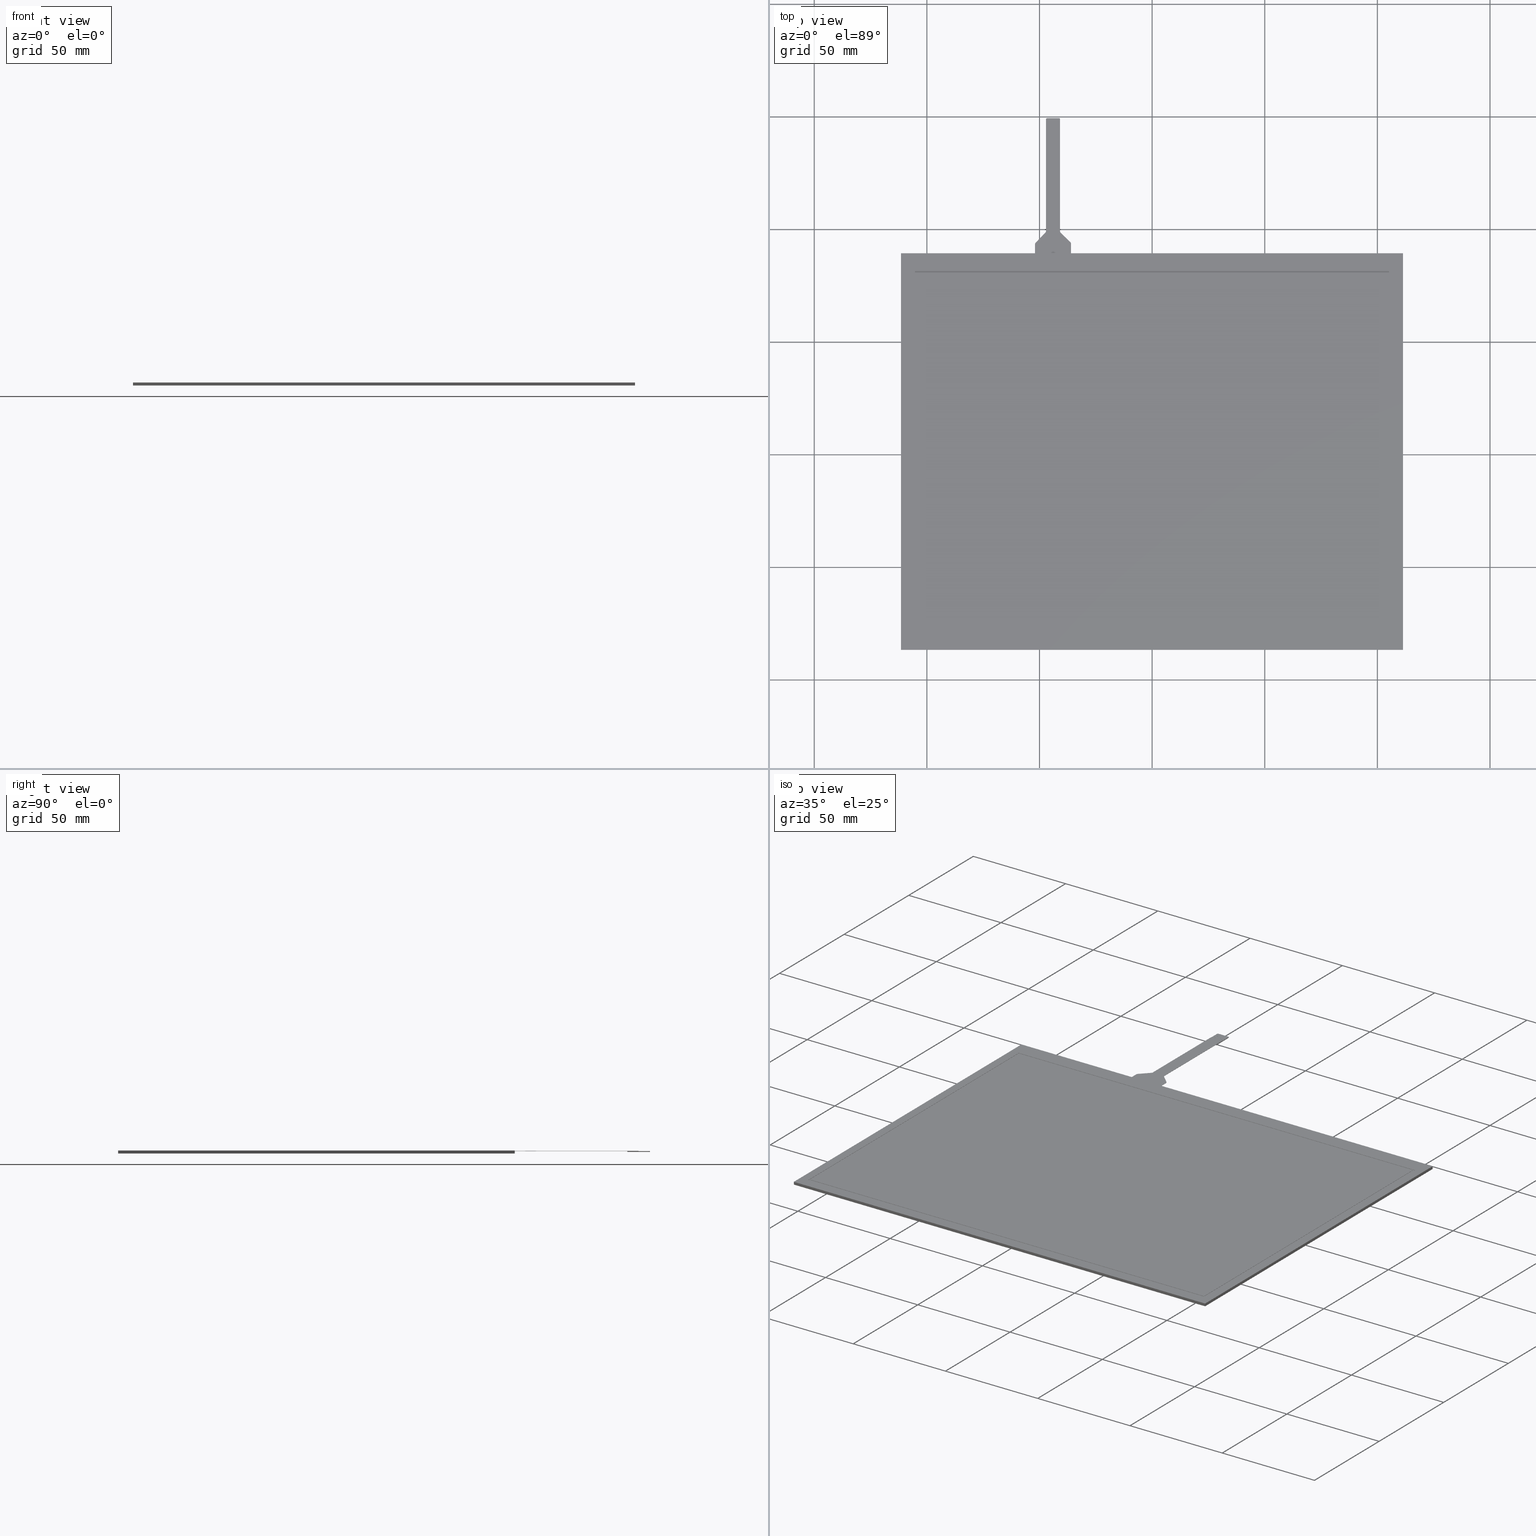
[diagram: canonical four-view strip — front | top / right | iso, engineering-drawing reading convention]
A machine part, canonical four-view strip (front | top / right | iso — engineering-drawing reading convention). The complete STEP part file that produces these views, byte-faithful:
ISO-10303-21;
HEADER;
/* Generated by software containing ST-Developer
 * from STEP Tools, Inc. (www.steptools.com) 
 */

FILE_DESCRIPTION(
/* description */ (''),
/* implementation_level */ '2;1');

FILE_NAME(
/* name */ 
'\\\\172.16.4.5\\\X2\65B06280885390E8\X0\$\\03 \X2\8A2D8A0830C730FC30BF\X0\\\
\X2\62B56297819C\X0\\\\X2\6A196E9654C1\X0\\\13. HP\X2\752856F39762\X0\\\
1. AST\\3D\X2\30C730FC30BF\X0\\\AST-105A060A\\AST-105A060A.stp',
/* time_stamp */ '2023-08-08T15:30:39+09:00',
/* author */ ('n-hirata'),
/* organization */ (''),
/* preprocessor_version */ 'ST-DEVELOPER v18.1',
/* originating_system */ 'Autodesk Inventor 2020',
/* authorisation */ '');

FILE_SCHEMA (('CONFIG_CONTROL_DESIGN'));
ENDSEC;

DATA;
#10=MECHANICAL_DESIGN_GEOMETRIC_PRESENTATION_REPRESENTATION('',(#30,#31,
#32,#33,#34,#35,#36,#37,#38,#39,#40,#41,#42,#43,#44),#1676);
#11=GEOMETRICALLY_BOUNDED_WIREFRAME_SHAPE_REPRESENTATION('',(#12),#1675);
#12=GEOMETRIC_CURVE_SET('\X2\30B930B130C330C1\X0\1',(#16,#17,#18,#19,#20,
#21,#22,#23,#24,#25,#26,#27,#28,#29));
#13=SHAPE_REPRESENTATION_RELATIONSHIP('SRR','None',#1683,#15);
#14=SHAPE_REPRESENTATION_RELATIONSHIP('SRR','None',#1683,#11);
#15=ADVANCED_BREP_SHAPE_REPRESENTATION('',(#45),#1675);
#16=POLYLINE('',(#1645,#1646));
#17=POLYLINE('',(#1647,#1648));
#18=POLYLINE('',(#1649,#1650));
#19=POLYLINE('',(#1651,#1652));
#20=POLYLINE('',(#1653,#1654));
#21=POLYLINE('',(#1655,#1656));
#22=POLYLINE('',(#1657,#1658));
#23=POLYLINE('',(#1659,#1660));
#24=POLYLINE('',(#1661,#1662));
#25=POLYLINE('',(#1663,#1664));
#26=POLYLINE('',(#1665,#1666));
#27=POLYLINE('',(#1667,#1668));
#28=POLYLINE('',(#1669,#1670));
#29=POLYLINE('',(#1671,#1672));
#30=STYLED_ITEM('',(#1692),#45);
#31=STYLED_ITEM('',(#1693),#16);
#32=STYLED_ITEM('',(#1693),#17);
#33=STYLED_ITEM('',(#1694),#18);
#34=STYLED_ITEM('',(#1694),#19);
#35=STYLED_ITEM('',(#1694),#20);
#36=STYLED_ITEM('',(#1694),#21);
#37=STYLED_ITEM('',(#1694),#22);
#38=STYLED_ITEM('',(#1694),#23);
#39=STYLED_ITEM('',(#1694),#24);
#40=STYLED_ITEM('',(#1694),#25);
#41=STYLED_ITEM('',(#1694),#26);
#42=STYLED_ITEM('',(#1694),#27);
#43=STYLED_ITEM('',(#1694),#28);
#44=STYLED_ITEM('',(#1694),#29);
#45=MANIFOLD_SOLID_BREP('\X2\30BD30EA30C330C9\X0\1',#1026);
#46=FACE_BOUND('',#189,.T.);
#47=FACE_BOUND('',#191,.T.);
#48=FACE_BOUND('',#196,.T.);
#49=PLANE('',#1049);
#50=PLANE('',#1051);
#51=PLANE('',#1057);
#52=PLANE('',#1058);
#53=PLANE('',#1064);
#54=PLANE('',#1067);
#55=PLANE('',#1070);
#56=PLANE('',#1071);
#57=PLANE('',#1072);
#58=PLANE('',#1073);
#59=PLANE('',#1074);
#60=PLANE('',#1075);
#61=PLANE('',#1076);
#62=PLANE('',#1077);
#63=PLANE('',#1078);
#64=PLANE('',#1079);
#65=PLANE('',#1080);
#66=PLANE('',#1081);
#67=PLANE('',#1082);
#68=PLANE('',#1083);
#69=PLANE('',#1084);
#70=PLANE('',#1085);
#71=PLANE('',#1086);
#72=PLANE('',#1087);
#73=PLANE('',#1088);
#74=PLANE('',#1089);
#75=PLANE('',#1090);
#76=PLANE('',#1091);
#77=PLANE('',#1092);
#78=PLANE('',#1093);
#79=PLANE('',#1094);
#80=PLANE('',#1095);
#81=PLANE('',#1096);
#82=PLANE('',#1097);
#83=PLANE('',#1098);
#84=PLANE('',#1099);
#85=PLANE('',#1100);
#86=PLANE('',#1101);
#87=PLANE('',#1102);
#88=PLANE('',#1103);
#89=PLANE('',#1104);
#90=PLANE('',#1105);
#91=PLANE('',#1106);
#92=PLANE('',#1107);
#93=PLANE('',#1108);
#94=FACE_OUTER_BOUND('',#145,.T.);
#95=FACE_OUTER_BOUND('',#146,.T.);
#96=FACE_OUTER_BOUND('',#147,.T.);
#97=FACE_OUTER_BOUND('',#148,.T.);
#98=FACE_OUTER_BOUND('',#149,.T.);
#99=FACE_OUTER_BOUND('',#150,.T.);
#100=FACE_OUTER_BOUND('',#151,.T.);
#101=FACE_OUTER_BOUND('',#152,.T.);
#102=FACE_OUTER_BOUND('',#153,.T.);
#103=FACE_OUTER_BOUND('',#154,.T.);
#104=FACE_OUTER_BOUND('',#155,.T.);
#105=FACE_OUTER_BOUND('',#156,.T.);
#106=FACE_OUTER_BOUND('',#157,.T.);
#107=FACE_OUTER_BOUND('',#158,.T.);
#108=FACE_OUTER_BOUND('',#159,.T.);
#109=FACE_OUTER_BOUND('',#160,.T.);
#110=FACE_OUTER_BOUND('',#161,.T.);
#111=FACE_OUTER_BOUND('',#162,.T.);
#112=FACE_OUTER_BOUND('',#163,.T.);
#113=FACE_OUTER_BOUND('',#164,.T.);
#114=FACE_OUTER_BOUND('',#165,.T.);
#115=FACE_OUTER_BOUND('',#166,.T.);
#116=FACE_OUTER_BOUND('',#167,.T.);
#117=FACE_OUTER_BOUND('',#168,.T.);
#118=FACE_OUTER_BOUND('',#169,.T.);
#119=FACE_OUTER_BOUND('',#170,.T.);
#120=FACE_OUTER_BOUND('',#171,.T.);
#121=FACE_OUTER_BOUND('',#172,.T.);
#122=FACE_OUTER_BOUND('',#173,.T.);
#123=FACE_OUTER_BOUND('',#174,.T.);
#124=FACE_OUTER_BOUND('',#175,.T.);
#125=FACE_OUTER_BOUND('',#176,.T.);
#126=FACE_OUTER_BOUND('',#177,.T.);
#127=FACE_OUTER_BOUND('',#178,.T.);
#128=FACE_OUTER_BOUND('',#179,.T.);
#129=FACE_OUTER_BOUND('',#180,.T.);
#130=FACE_OUTER_BOUND('',#181,.T.);
#131=FACE_OUTER_BOUND('',#182,.T.);
#132=FACE_OUTER_BOUND('',#183,.T.);
#133=FACE_OUTER_BOUND('',#184,.T.);
#134=FACE_OUTER_BOUND('',#185,.T.);
#135=FACE_OUTER_BOUND('',#186,.T.);
#136=FACE_OUTER_BOUND('',#187,.T.);
#137=FACE_OUTER_BOUND('',#188,.T.);
#138=FACE_OUTER_BOUND('',#190,.T.);
#139=FACE_OUTER_BOUND('',#192,.T.);
#140=FACE_OUTER_BOUND('',#193,.T.);
#141=FACE_OUTER_BOUND('',#194,.T.);
#142=FACE_OUTER_BOUND('',#195,.T.);
#143=FACE_OUTER_BOUND('',#197,.T.);
#144=FACE_OUTER_BOUND('',#198,.T.);
#145=EDGE_LOOP('',(#693,#694,#695,#696));
#146=EDGE_LOOP('',(#697,#698,#699,#700,#701,#702));
#147=EDGE_LOOP('',(#703,#704,#705,#706,#707,#708,#709,#710,#711,#712,#713,
#714,#715,#716,#717,#718,#719,#720,#721,#722));
#148=EDGE_LOOP('',(#723,#724,#725,#726));
#149=EDGE_LOOP('',(#727,#728,#729,#730));
#150=EDGE_LOOP('',(#731,#732,#733,#734));
#151=EDGE_LOOP('',(#735,#736,#737,#738,#739,#740,#741,#742,#743,#744,#745,
#746));
#152=EDGE_LOOP('',(#747,#748,#749,#750));
#153=EDGE_LOOP('',(#751,#752,#753,#754,#755,#756,#757,#758));
#154=EDGE_LOOP('',(#759,#760,#761,#762));
#155=EDGE_LOOP('',(#763,#764,#765,#766));
#156=EDGE_LOOP('',(#767,#768,#769,#770));
#157=EDGE_LOOP('',(#771,#772,#773,#774,#775,#776,#777,#778,#779,#780,#781,
#782));
#158=EDGE_LOOP('',(#783,#784,#785,#786));
#159=EDGE_LOOP('',(#787,#788,#789,#790));
#160=EDGE_LOOP('',(#791,#792,#793,#794));
#161=EDGE_LOOP('',(#795,#796,#797,#798));
#162=EDGE_LOOP('',(#799,#800,#801,#802));
#163=EDGE_LOOP('',(#803,#804,#805,#806));
#164=EDGE_LOOP('',(#807,#808,#809,#810));
#165=EDGE_LOOP('',(#811,#812,#813,#814));
#166=EDGE_LOOP('',(#815,#816,#817,#818));
#167=EDGE_LOOP('',(#819,#820,#821,#822,#823,#824,#825,#826,#827,#828,#829,
#830,#831,#832,#833,#834,#835,#836,#837,#838));
#168=EDGE_LOOP('',(#839,#840,#841,#842));
#169=EDGE_LOOP('',(#843,#844,#845,#846));
#170=EDGE_LOOP('',(#847,#848,#849,#850));
#171=EDGE_LOOP('',(#851,#852,#853,#854));
#172=EDGE_LOOP('',(#855,#856,#857,#858));
#173=EDGE_LOOP('',(#859,#860,#861,#862));
#174=EDGE_LOOP('',(#863,#864,#865,#866,#867));
#175=EDGE_LOOP('',(#868,#869,#870,#871,#872));
#176=EDGE_LOOP('',(#873,#874,#875,#876));
#177=EDGE_LOOP('',(#877,#878,#879,#880));
#178=EDGE_LOOP('',(#881,#882,#883,#884,#885,#886,#887,#888));
#179=EDGE_LOOP('',(#889,#890,#891,#892));
#180=EDGE_LOOP('',(#893,#894,#895,#896));
#181=EDGE_LOOP('',(#897,#898,#899,#900));
#182=EDGE_LOOP('',(#901,#902,#903,#904));
#183=EDGE_LOOP('',(#905,#906,#907,#908));
#184=EDGE_LOOP('',(#909,#910,#911,#912));
#185=EDGE_LOOP('',(#913,#914,#915,#916));
#186=EDGE_LOOP('',(#917,#918,#919,#920));
#187=EDGE_LOOP('',(#921,#922,#923,#924));
#188=EDGE_LOOP('',(#925,#926,#927,#928));
#189=EDGE_LOOP('',(#929,#930,#931,#932));
#190=EDGE_LOOP('',(#933,#934,#935,#936));
#191=EDGE_LOOP('',(#937,#938,#939,#940));
#192=EDGE_LOOP('',(#941,#942,#943,#944));
#193=EDGE_LOOP('',(#945,#946,#947,#948));
#194=EDGE_LOOP('',(#949,#950,#951,#952));
#195=EDGE_LOOP('',(#953,#954,#955,#956));
#196=EDGE_LOOP('',(#957,#958,#959,#960));
#197=EDGE_LOOP('',(#961,#962,#963,#964));
#198=EDGE_LOOP('',(#965,#966,#967,#968));
#199=LINE('',#1369,#325);
#200=LINE('',#1372,#326);
#201=LINE('',#1375,#327);
#202=LINE('',#1379,#328);
#203=LINE('',#1381,#329);
#204=LINE('',#1382,#330);
#205=LINE('',#1385,#331);
#206=LINE('',#1387,#332);
#207=LINE('',#1389,#333);
#208=LINE('',#1391,#334);
#209=LINE('',#1393,#335);
#210=LINE('',#1395,#336);
#211=LINE('',#1397,#337);
#212=LINE('',#1399,#338);
#213=LINE('',#1401,#339);
#214=LINE('',#1403,#340);
#215=LINE('',#1405,#341);
#216=LINE('',#1407,#342);
#217=LINE('',#1409,#343);
#218=LINE('',#1411,#344);
#219=LINE('',#1413,#345);
#220=LINE('',#1415,#346);
#221=LINE('',#1417,#347);
#222=LINE('',#1418,#348);
#223=LINE('',#1422,#349);
#224=LINE('',#1428,#350);
#225=LINE('',#1431,#351);
#226=LINE('',#1434,#352);
#227=LINE('',#1436,#353);
#228=LINE('',#1437,#354);
#229=LINE('',#1440,#355);
#230=LINE('',#1442,#356);
#231=LINE('',#1444,#357);
#232=LINE('',#1448,#358);
#233=LINE('',#1452,#359);
#234=LINE('',#1454,#360);
#235=LINE('',#1456,#361);
#236=LINE('',#1460,#362);
#237=LINE('',#1464,#363);
#238=LINE('',#1465,#364);
#239=LINE('',#1467,#365);
#240=LINE('',#1468,#366);
#241=LINE('',#1471,#367);
#242=LINE('',#1474,#368);
#243=LINE('',#1477,#369);
#244=LINE('',#1478,#370);
#245=LINE('',#1482,#371);
#246=LINE('',#1485,#372);
#247=LINE('',#1486,#373);
#248=LINE('',#1488,#374);
#249=LINE('',#1490,#375);
#250=LINE('',#1491,#376);
#251=LINE('',#1494,#377);
#252=LINE('',#1496,#378);
#253=LINE('',#1497,#379);
#254=LINE('',#1500,#380);
#255=LINE('',#1502,#381);
#256=LINE('',#1503,#382);
#257=LINE('',#1505,#383);
#258=LINE('',#1508,#384);
#259=LINE('',#1510,#385);
#260=LINE('',#1511,#386);
#261=LINE('',#1514,#387);
#262=LINE('',#1516,#388);
#263=LINE('',#1517,#389);
#264=LINE('',#1519,#390);
#265=LINE('',#1522,#391);
#266=LINE('',#1524,#392);
#267=LINE('',#1525,#393);
#268=LINE('',#1528,#394);
#269=LINE('',#1530,#395);
#270=LINE('',#1531,#396);
#271=LINE('',#1533,#397);
#272=LINE('',#1535,#398);
#273=LINE('',#1536,#399);
#274=LINE('',#1538,#400);
#275=LINE('',#1540,#401);
#276=LINE('',#1542,#402);
#277=LINE('',#1544,#403);
#278=LINE('',#1545,#404);
#279=LINE('',#1547,#405);
#280=LINE('',#1548,#406);
#281=LINE('',#1550,#407);
#282=LINE('',#1554,#408);
#283=LINE('',#1555,#409);
#284=LINE('',#1557,#410);
#285=LINE('',#1560,#411);
#286=LINE('',#1563,#412);
#287=LINE('',#1565,#413);
#288=LINE('',#1568,#414);
#289=LINE('',#1572,#415);
#290=LINE('',#1574,#416);
#291=LINE('',#1576,#417);
#292=LINE('',#1577,#418);
#293=LINE('',#1580,#419);
#294=LINE('',#1582,#420);
#295=LINE('',#1583,#421);
#296=LINE('',#1586,#422);
#297=LINE('',#1588,#423);
#298=LINE('',#1589,#424);
#299=LINE('',#1591,#425);
#300=LINE('',#1592,#426);
#301=LINE('',#1596,#427);
#302=LINE('',#1598,#428);
#303=LINE('',#1600,#429);
#304=LINE('',#1601,#430);
#305=LINE('',#1604,#431);
#306=LINE('',#1606,#432);
#307=LINE('',#1607,#433);
#308=LINE('',#1610,#434);
#309=LINE('',#1612,#435);
#310=LINE('',#1613,#436);
#311=LINE('',#1615,#437);
#312=LINE('',#1616,#438);
#313=LINE('',#1621,#439);
#314=LINE('',#1623,#440);
#315=LINE('',#1625,#441);
#316=LINE('',#1626,#442);
#317=LINE('',#1629,#443);
#318=LINE('',#1631,#444);
#319=LINE('',#1632,#445);
#320=LINE('',#1635,#446);
#321=LINE('',#1636,#447);
#322=LINE('',#1639,#448);
#323=LINE('',#1640,#449);
#324=LINE('',#1642,#450);
#325=VECTOR('',#1115,10.);
#326=VECTOR('',#1118,10.);
#327=VECTOR('',#1121,10.);
#328=VECTOR('',#1124,10.);
#329=VECTOR('',#1125,10.);
#330=VECTOR('',#1126,10.);
#331=VECTOR('',#1129,10.);
#332=VECTOR('',#1130,10.);
#333=VECTOR('',#1131,10.);
#334=VECTOR('',#1132,10.);
#335=VECTOR('',#1133,10.);
#336=VECTOR('',#1134,10.);
#337=VECTOR('',#1135,10.);
#338=VECTOR('',#1136,10.);
#339=VECTOR('',#1137,10.);
#340=VECTOR('',#1138,10.);
#341=VECTOR('',#1139,10.);
#342=VECTOR('',#1140,10.);
#343=VECTOR('',#1141,10.);
#344=VECTOR('',#1142,10.);
#345=VECTOR('',#1143,10.);
#346=VECTOR('',#1144,10.);
#347=VECTOR('',#1145,10.);
#348=VECTOR('',#1146,10.);
#349=VECTOR('',#1151,10.);
#350=VECTOR('',#1156,10.);
#351=VECTOR('',#1159,10.);
#352=VECTOR('',#1162,10.);
#353=VECTOR('',#1163,10.);
#354=VECTOR('',#1164,10.);
#355=VECTOR('',#1167,10.);
#356=VECTOR('',#1168,10.);
#357=VECTOR('',#1169,10.);
#358=VECTOR('',#1172,10.);
#359=VECTOR('',#1175,10.);
#360=VECTOR('',#1176,10.);
#361=VECTOR('',#1177,10.);
#362=VECTOR('',#1182,10.);
#363=VECTOR('',#1187,10.);
#364=VECTOR('',#1188,10.);
#365=VECTOR('',#1189,10.);
#366=VECTOR('',#1190,10.);
#367=VECTOR('',#1193,10.);
#368=VECTOR('',#1196,10.);
#369=VECTOR('',#1199,10.);
#370=VECTOR('',#1200,10.);
#371=VECTOR('',#1205,10.);
#372=VECTOR('',#1208,10.);
#373=VECTOR('',#1209,10.);
#374=VECTOR('',#1210,10.);
#375=VECTOR('',#1211,10.);
#376=VECTOR('',#1212,10.);
#377=VECTOR('',#1215,10.);
#378=VECTOR('',#1216,10.);
#379=VECTOR('',#1217,10.);
#380=VECTOR('',#1220,10.);
#381=VECTOR('',#1221,10.);
#382=VECTOR('',#1222,10.);
#383=VECTOR('',#1225,10.);
#384=VECTOR('',#1228,10.);
#385=VECTOR('',#1229,10.);
#386=VECTOR('',#1230,10.);
#387=VECTOR('',#1233,10.);
#388=VECTOR('',#1234,10.);
#389=VECTOR('',#1235,10.);
#390=VECTOR('',#1238,10.);
#391=VECTOR('',#1241,10.);
#392=VECTOR('',#1242,10.);
#393=VECTOR('',#1243,10.);
#394=VECTOR('',#1246,10.);
#395=VECTOR('',#1247,10.);
#396=VECTOR('',#1248,10.);
#397=VECTOR('',#1251,10.);
#398=VECTOR('',#1254,10.);
#399=VECTOR('',#1255,10.);
#400=VECTOR('',#1256,10.);
#401=VECTOR('',#1257,10.);
#402=VECTOR('',#1258,10.);
#403=VECTOR('',#1259,10.);
#404=VECTOR('',#1260,10.);
#405=VECTOR('',#1261,10.);
#406=VECTOR('',#1262,10.);
#407=VECTOR('',#1265,10.);
#408=VECTOR('',#1272,10.);
#409=VECTOR('',#1273,10.);
#410=VECTOR('',#1276,10.);
#411=VECTOR('',#1281,10.);
#412=VECTOR('',#1286,10.);
#413=VECTOR('',#1289,10.);
#414=VECTOR('',#1294,10.);
#415=VECTOR('',#1297,10.);
#416=VECTOR('',#1298,10.);
#417=VECTOR('',#1299,10.);
#418=VECTOR('',#1300,10.);
#419=VECTOR('',#1303,10.);
#420=VECTOR('',#1304,10.);
#421=VECTOR('',#1305,10.);
#422=VECTOR('',#1308,10.);
#423=VECTOR('',#1309,10.);
#424=VECTOR('',#1310,10.);
#425=VECTOR('',#1313,10.);
#426=VECTOR('',#1314,10.);
#427=VECTOR('',#1317,10.);
#428=VECTOR('',#1318,10.);
#429=VECTOR('',#1319,10.);
#430=VECTOR('',#1320,10.);
#431=VECTOR('',#1323,10.);
#432=VECTOR('',#1324,10.);
#433=VECTOR('',#1325,10.);
#434=VECTOR('',#1328,10.);
#435=VECTOR('',#1329,10.);
#436=VECTOR('',#1330,10.);
#437=VECTOR('',#1333,10.);
#438=VECTOR('',#1334,10.);
#439=VECTOR('',#1339,10.);
#440=VECTOR('',#1340,10.);
#441=VECTOR('',#1341,10.);
#442=VECTOR('',#1342,10.);
#443=VECTOR('',#1345,10.);
#444=VECTOR('',#1346,10.);
#445=VECTOR('',#1347,10.);
#446=VECTOR('',#1350,10.);
#447=VECTOR('',#1351,10.);
#448=VECTOR('',#1354,10.);
#449=VECTOR('',#1355,10.);
#450=VECTOR('',#1358,10.);
#451=CIRCLE('',#1047,0.5);
#452=CIRCLE('',#1048,0.5);
#453=CIRCLE('',#1050,0.5);
#454=CIRCLE('',#1053,0.5);
#455=CIRCLE('',#1055,1.);
#456=CIRCLE('',#1056,1.);
#457=CIRCLE('',#1059,1.);
#458=CIRCLE('',#1060,1.);
#459=CIRCLE('',#1061,1.);
#460=CIRCLE('',#1063,1.);
#461=CIRCLE('',#1066,1.);
#462=CIRCLE('',#1069,1.);
#463=VERTEX_POINT('',#1365);
#464=VERTEX_POINT('',#1366);
#465=VERTEX_POINT('',#1368);
#466=VERTEX_POINT('',#1370);
#467=VERTEX_POINT('',#1374);
#468=VERTEX_POINT('',#1376);
#469=VERTEX_POINT('',#1378);
#470=VERTEX_POINT('',#1380);
#471=VERTEX_POINT('',#1384);
#472=VERTEX_POINT('',#1386);
#473=VERTEX_POINT('',#1388);
#474=VERTEX_POINT('',#1390);
#475=VERTEX_POINT('',#1392);
#476=VERTEX_POINT('',#1394);
#477=VERTEX_POINT('',#1396);
#478=VERTEX_POINT('',#1398);
#479=VERTEX_POINT('',#1400);
#480=VERTEX_POINT('',#1402);
#481=VERTEX_POINT('',#1404);
#482=VERTEX_POINT('',#1406);
#483=VERTEX_POINT('',#1408);
#484=VERTEX_POINT('',#1410);
#485=VERTEX_POINT('',#1412);
#486=VERTEX_POINT('',#1414);
#487=VERTEX_POINT('',#1416);
#488=VERTEX_POINT('',#1420);
#489=VERTEX_POINT('',#1424);
#490=VERTEX_POINT('',#1425);
#491=VERTEX_POINT('',#1427);
#492=VERTEX_POINT('',#1429);
#493=VERTEX_POINT('',#1433);
#494=VERTEX_POINT('',#1435);
#495=VERTEX_POINT('',#1439);
#496=VERTEX_POINT('',#1441);
#497=VERTEX_POINT('',#1443);
#498=VERTEX_POINT('',#1445);
#499=VERTEX_POINT('',#1447);
#500=VERTEX_POINT('',#1449);
#501=VERTEX_POINT('',#1451);
#502=VERTEX_POINT('',#1453);
#503=VERTEX_POINT('',#1455);
#504=VERTEX_POINT('',#1459);
#505=VERTEX_POINT('',#1463);
#506=VERTEX_POINT('',#1466);
#507=VERTEX_POINT('',#1470);
#508=VERTEX_POINT('',#1472);
#509=VERTEX_POINT('',#1476);
#510=VERTEX_POINT('',#1480);
#511=VERTEX_POINT('',#1484);
#512=VERTEX_POINT('',#1487);
#513=VERTEX_POINT('',#1489);
#514=VERTEX_POINT('',#1493);
#515=VERTEX_POINT('',#1495);
#516=VERTEX_POINT('',#1499);
#517=VERTEX_POINT('',#1501);
#518=VERTEX_POINT('',#1507);
#519=VERTEX_POINT('',#1509);
#520=VERTEX_POINT('',#1513);
#521=VERTEX_POINT('',#1515);
#522=VERTEX_POINT('',#1521);
#523=VERTEX_POINT('',#1523);
#524=VERTEX_POINT('',#1527);
#525=VERTEX_POINT('',#1529);
#526=VERTEX_POINT('',#1537);
#527=VERTEX_POINT('',#1539);
#528=VERTEX_POINT('',#1541);
#529=VERTEX_POINT('',#1543);
#530=VERTEX_POINT('',#1546);
#531=VERTEX_POINT('',#1570);
#532=VERTEX_POINT('',#1571);
#533=VERTEX_POINT('',#1573);
#534=VERTEX_POINT('',#1575);
#535=VERTEX_POINT('',#1579);
#536=VERTEX_POINT('',#1581);
#537=VERTEX_POINT('',#1585);
#538=VERTEX_POINT('',#1587);
#539=VERTEX_POINT('',#1594);
#540=VERTEX_POINT('',#1595);
#541=VERTEX_POINT('',#1597);
#542=VERTEX_POINT('',#1599);
#543=VERTEX_POINT('',#1603);
#544=VERTEX_POINT('',#1605);
#545=VERTEX_POINT('',#1609);
#546=VERTEX_POINT('',#1611);
#547=VERTEX_POINT('',#1619);
#548=VERTEX_POINT('',#1620);
#549=VERTEX_POINT('',#1622);
#550=VERTEX_POINT('',#1624);
#551=VERTEX_POINT('',#1628);
#552=VERTEX_POINT('',#1630);
#553=VERTEX_POINT('',#1634);
#554=VERTEX_POINT('',#1638);
#555=EDGE_CURVE('',#463,#464,#451,.T.);
#556=EDGE_CURVE('',#464,#465,#199,.T.);
#557=EDGE_CURVE('',#465,#466,#452,.T.);
#558=EDGE_CURVE('',#466,#463,#200,.T.);
#559=EDGE_CURVE('',#463,#467,#201,.T.);
#560=EDGE_CURVE('',#468,#467,#453,.T.);
#561=EDGE_CURVE('',#468,#469,#202,.T.);
#562=EDGE_CURVE('',#469,#470,#203,.T.);
#563=EDGE_CURVE('',#470,#464,#204,.T.);
#564=EDGE_CURVE('',#466,#471,#205,.T.);
#565=EDGE_CURVE('',#471,#472,#206,.T.);
#566=EDGE_CURVE('',#473,#472,#207,.T.);
#567=EDGE_CURVE('',#474,#473,#208,.T.);
#568=EDGE_CURVE('',#474,#475,#209,.T.);
#569=EDGE_CURVE('',#475,#476,#210,.T.);
#570=EDGE_CURVE('',#477,#476,#211,.T.);
#571=EDGE_CURVE('',#478,#477,#212,.T.);
#572=EDGE_CURVE('',#478,#479,#213,.T.);
#573=EDGE_CURVE('',#479,#480,#214,.T.);
#574=EDGE_CURVE('',#481,#480,#215,.T.);
#575=EDGE_CURVE('',#482,#481,#216,.T.);
#576=EDGE_CURVE('',#482,#483,#217,.T.);
#577=EDGE_CURVE('',#483,#484,#218,.T.);
#578=EDGE_CURVE('',#485,#484,#219,.T.);
#579=EDGE_CURVE('',#486,#485,#220,.T.);
#580=EDGE_CURVE('',#486,#487,#221,.T.);
#581=EDGE_CURVE('',#467,#487,#222,.T.);
#582=EDGE_CURVE('',#487,#488,#454,.T.);
#583=EDGE_CURVE('',#488,#468,#223,.T.);
#584=EDGE_CURVE('',#489,#490,#455,.T.);
#585=EDGE_CURVE('',#490,#491,#224,.T.);
#586=EDGE_CURVE('',#491,#492,#456,.T.);
#587=EDGE_CURVE('',#492,#489,#225,.T.);
#588=EDGE_CURVE('',#493,#492,#226,.T.);
#589=EDGE_CURVE('',#494,#493,#227,.T.);
#590=EDGE_CURVE('',#489,#494,#228,.T.);
#591=EDGE_CURVE('',#491,#495,#229,.T.);
#592=EDGE_CURVE('',#496,#495,#230,.T.);
#593=EDGE_CURVE('',#496,#497,#231,.T.);
#594=EDGE_CURVE('',#498,#497,#457,.T.);
#595=EDGE_CURVE('',#498,#499,#232,.T.);
#596=EDGE_CURVE('',#500,#499,#458,.T.);
#597=EDGE_CURVE('',#500,#501,#233,.T.);
#598=EDGE_CURVE('',#501,#502,#234,.T.);
#599=EDGE_CURVE('',#502,#503,#235,.T.);
#600=EDGE_CURVE('',#493,#503,#459,.T.);
#601=EDGE_CURVE('',#503,#504,#236,.T.);
#602=EDGE_CURVE('',#504,#494,#460,.T.);
#603=EDGE_CURVE('',#505,#470,#237,.T.);
#604=EDGE_CURVE('',#504,#505,#238,.T.);
#605=EDGE_CURVE('',#502,#506,#239,.T.);
#606=EDGE_CURVE('',#506,#465,#240,.T.);
#607=EDGE_CURVE('',#499,#507,#241,.T.);
#608=EDGE_CURVE('',#507,#508,#461,.T.);
#609=EDGE_CURVE('',#508,#500,#242,.T.);
#610=EDGE_CURVE('',#509,#498,#243,.T.);
#611=EDGE_CURVE('',#507,#509,#244,.T.);
#612=EDGE_CURVE('',#510,#509,#462,.T.);
#613=EDGE_CURVE('',#497,#510,#245,.T.);
#614=EDGE_CURVE('',#505,#511,#246,.T.);
#615=EDGE_CURVE('',#511,#508,#247,.T.);
#616=EDGE_CURVE('',#510,#512,#248,.T.);
#617=EDGE_CURVE('',#513,#512,#249,.T.);
#618=EDGE_CURVE('',#513,#490,#250,.T.);
#619=EDGE_CURVE('',#514,#483,#251,.T.);
#620=EDGE_CURVE('',#515,#514,#252,.T.);
#621=EDGE_CURVE('',#484,#515,#253,.T.);
#622=EDGE_CURVE('',#486,#516,#254,.T.);
#623=EDGE_CURVE('',#517,#485,#255,.T.);
#624=EDGE_CURVE('',#516,#517,#256,.T.);
#625=EDGE_CURVE('',#517,#515,#257,.T.);
#626=EDGE_CURVE('',#518,#479,#258,.T.);
#627=EDGE_CURVE('',#519,#518,#259,.T.);
#628=EDGE_CURVE('',#480,#519,#260,.T.);
#629=EDGE_CURVE('',#482,#520,#261,.T.);
#630=EDGE_CURVE('',#521,#481,#262,.T.);
#631=EDGE_CURVE('',#520,#521,#263,.T.);
#632=EDGE_CURVE('',#521,#519,#264,.T.);
#633=EDGE_CURVE('',#522,#475,#265,.T.);
#634=EDGE_CURVE('',#523,#522,#266,.T.);
#635=EDGE_CURVE('',#476,#523,#267,.T.);
#636=EDGE_CURVE('',#478,#524,#268,.T.);
#637=EDGE_CURVE('',#525,#477,#269,.T.);
#638=EDGE_CURVE('',#524,#525,#270,.T.);
#639=EDGE_CURVE('',#525,#523,#271,.T.);
#640=EDGE_CURVE('',#514,#520,#272,.T.);
#641=EDGE_CURVE('',#518,#524,#273,.T.);
#642=EDGE_CURVE('',#522,#526,#274,.T.);
#643=EDGE_CURVE('',#526,#527,#275,.T.);
#644=EDGE_CURVE('',#527,#528,#276,.T.);
#645=EDGE_CURVE('',#528,#529,#277,.T.);
#646=EDGE_CURVE('',#529,#506,#278,.T.);
#647=EDGE_CURVE('',#530,#501,#279,.T.);
#648=EDGE_CURVE('',#530,#516,#280,.T.);
#649=EDGE_CURVE('',#474,#526,#281,.T.);
#650=EDGE_CURVE('',#529,#471,#282,.T.);
#651=EDGE_CURVE('',#472,#528,#283,.T.);
#652=EDGE_CURVE('',#527,#473,#284,.T.);
#653=EDGE_CURVE('',#488,#530,#285,.T.);
#654=EDGE_CURVE('',#511,#469,#286,.T.);
#655=EDGE_CURVE('',#512,#496,#287,.T.);
#656=EDGE_CURVE('',#495,#513,#288,.T.);
#657=EDGE_CURVE('',#531,#532,#289,.T.);
#658=EDGE_CURVE('',#531,#533,#290,.T.);
#659=EDGE_CURVE('',#533,#534,#291,.T.);
#660=EDGE_CURVE('',#532,#534,#292,.T.);
#661=EDGE_CURVE('',#535,#531,#293,.T.);
#662=EDGE_CURVE('',#535,#536,#294,.T.);
#663=EDGE_CURVE('',#536,#533,#295,.T.);
#664=EDGE_CURVE('',#537,#535,#296,.T.);
#665=EDGE_CURVE('',#537,#538,#297,.T.);
#666=EDGE_CURVE('',#538,#536,#298,.T.);
#667=EDGE_CURVE('',#532,#537,#299,.T.);
#668=EDGE_CURVE('',#534,#538,#300,.T.);
#669=EDGE_CURVE('',#539,#540,#301,.T.);
#670=EDGE_CURVE('',#539,#541,#302,.T.);
#671=EDGE_CURVE('',#541,#542,#303,.T.);
#672=EDGE_CURVE('',#540,#542,#304,.T.);
#673=EDGE_CURVE('',#543,#539,#305,.T.);
#674=EDGE_CURVE('',#543,#544,#306,.T.);
#675=EDGE_CURVE('',#544,#541,#307,.T.);
#676=EDGE_CURVE('',#545,#543,#308,.T.);
#677=EDGE_CURVE('',#545,#546,#309,.T.);
#678=EDGE_CURVE('',#546,#544,#310,.T.);
#679=EDGE_CURVE('',#540,#545,#311,.T.);
#680=EDGE_CURVE('',#542,#546,#312,.T.);
#681=EDGE_CURVE('',#547,#548,#313,.T.);
#682=EDGE_CURVE('',#548,#549,#314,.T.);
#683=EDGE_CURVE('',#549,#550,#315,.T.);
#684=EDGE_CURVE('',#550,#547,#316,.T.);
#685=EDGE_CURVE('',#548,#551,#317,.T.);
#686=EDGE_CURVE('',#552,#551,#318,.T.);
#687=EDGE_CURVE('',#549,#552,#319,.T.);
#688=EDGE_CURVE('',#553,#552,#320,.T.);
#689=EDGE_CURVE('',#550,#553,#321,.T.);
#690=EDGE_CURVE('',#554,#553,#322,.T.);
#691=EDGE_CURVE('',#547,#554,#323,.T.);
#692=EDGE_CURVE('',#551,#554,#324,.T.);
#693=ORIENTED_EDGE('',*,*,#555,.T.);
#694=ORIENTED_EDGE('',*,*,#556,.T.);
#695=ORIENTED_EDGE('',*,*,#557,.T.);
#696=ORIENTED_EDGE('',*,*,#558,.T.);
#697=ORIENTED_EDGE('',*,*,#555,.F.);
#698=ORIENTED_EDGE('',*,*,#559,.T.);
#699=ORIENTED_EDGE('',*,*,#560,.F.);
#700=ORIENTED_EDGE('',*,*,#561,.T.);
#701=ORIENTED_EDGE('',*,*,#562,.T.);
#702=ORIENTED_EDGE('',*,*,#563,.T.);
#703=ORIENTED_EDGE('',*,*,#558,.F.);
#704=ORIENTED_EDGE('',*,*,#564,.T.);
#705=ORIENTED_EDGE('',*,*,#565,.T.);
#706=ORIENTED_EDGE('',*,*,#566,.F.);
#707=ORIENTED_EDGE('',*,*,#567,.F.);
#708=ORIENTED_EDGE('',*,*,#568,.T.);
#709=ORIENTED_EDGE('',*,*,#569,.T.);
#710=ORIENTED_EDGE('',*,*,#570,.F.);
#711=ORIENTED_EDGE('',*,*,#571,.F.);
#712=ORIENTED_EDGE('',*,*,#572,.T.);
#713=ORIENTED_EDGE('',*,*,#573,.T.);
#714=ORIENTED_EDGE('',*,*,#574,.F.);
#715=ORIENTED_EDGE('',*,*,#575,.F.);
#716=ORIENTED_EDGE('',*,*,#576,.T.);
#717=ORIENTED_EDGE('',*,*,#577,.T.);
#718=ORIENTED_EDGE('',*,*,#578,.F.);
#719=ORIENTED_EDGE('',*,*,#579,.F.);
#720=ORIENTED_EDGE('',*,*,#580,.T.);
#721=ORIENTED_EDGE('',*,*,#581,.F.);
#722=ORIENTED_EDGE('',*,*,#559,.F.);
#723=ORIENTED_EDGE('',*,*,#560,.T.);
#724=ORIENTED_EDGE('',*,*,#581,.T.);
#725=ORIENTED_EDGE('',*,*,#582,.T.);
#726=ORIENTED_EDGE('',*,*,#583,.T.);
#727=ORIENTED_EDGE('',*,*,#584,.T.);
#728=ORIENTED_EDGE('',*,*,#585,.T.);
#729=ORIENTED_EDGE('',*,*,#586,.T.);
#730=ORIENTED_EDGE('',*,*,#587,.T.);
#731=ORIENTED_EDGE('',*,*,#587,.F.);
#732=ORIENTED_EDGE('',*,*,#588,.F.);
#733=ORIENTED_EDGE('',*,*,#589,.F.);
#734=ORIENTED_EDGE('',*,*,#590,.F.);
#735=ORIENTED_EDGE('',*,*,#586,.F.);
#736=ORIENTED_EDGE('',*,*,#591,.T.);
#737=ORIENTED_EDGE('',*,*,#592,.F.);
#738=ORIENTED_EDGE('',*,*,#593,.T.);
#739=ORIENTED_EDGE('',*,*,#594,.F.);
#740=ORIENTED_EDGE('',*,*,#595,.T.);
#741=ORIENTED_EDGE('',*,*,#596,.F.);
#742=ORIENTED_EDGE('',*,*,#597,.T.);
#743=ORIENTED_EDGE('',*,*,#598,.T.);
#744=ORIENTED_EDGE('',*,*,#599,.T.);
#745=ORIENTED_EDGE('',*,*,#600,.F.);
#746=ORIENTED_EDGE('',*,*,#588,.T.);
#747=ORIENTED_EDGE('',*,*,#600,.T.);
#748=ORIENTED_EDGE('',*,*,#601,.T.);
#749=ORIENTED_EDGE('',*,*,#602,.T.);
#750=ORIENTED_EDGE('',*,*,#589,.T.);
#751=ORIENTED_EDGE('',*,*,#556,.F.);
#752=ORIENTED_EDGE('',*,*,#563,.F.);
#753=ORIENTED_EDGE('',*,*,#603,.F.);
#754=ORIENTED_EDGE('',*,*,#604,.F.);
#755=ORIENTED_EDGE('',*,*,#601,.F.);
#756=ORIENTED_EDGE('',*,*,#599,.F.);
#757=ORIENTED_EDGE('',*,*,#605,.T.);
#758=ORIENTED_EDGE('',*,*,#606,.T.);
#759=ORIENTED_EDGE('',*,*,#596,.T.);
#760=ORIENTED_EDGE('',*,*,#607,.T.);
#761=ORIENTED_EDGE('',*,*,#608,.T.);
#762=ORIENTED_EDGE('',*,*,#609,.T.);
#763=ORIENTED_EDGE('',*,*,#607,.F.);
#764=ORIENTED_EDGE('',*,*,#595,.F.);
#765=ORIENTED_EDGE('',*,*,#610,.F.);
#766=ORIENTED_EDGE('',*,*,#611,.F.);
#767=ORIENTED_EDGE('',*,*,#612,.T.);
#768=ORIENTED_EDGE('',*,*,#610,.T.);
#769=ORIENTED_EDGE('',*,*,#594,.T.);
#770=ORIENTED_EDGE('',*,*,#613,.T.);
#771=ORIENTED_EDGE('',*,*,#584,.F.);
#772=ORIENTED_EDGE('',*,*,#590,.T.);
#773=ORIENTED_EDGE('',*,*,#602,.F.);
#774=ORIENTED_EDGE('',*,*,#604,.T.);
#775=ORIENTED_EDGE('',*,*,#614,.T.);
#776=ORIENTED_EDGE('',*,*,#615,.T.);
#777=ORIENTED_EDGE('',*,*,#608,.F.);
#778=ORIENTED_EDGE('',*,*,#611,.T.);
#779=ORIENTED_EDGE('',*,*,#612,.F.);
#780=ORIENTED_EDGE('',*,*,#616,.T.);
#781=ORIENTED_EDGE('',*,*,#617,.F.);
#782=ORIENTED_EDGE('',*,*,#618,.T.);
#783=ORIENTED_EDGE('',*,*,#619,.F.);
#784=ORIENTED_EDGE('',*,*,#620,.F.);
#785=ORIENTED_EDGE('',*,*,#621,.F.);
#786=ORIENTED_EDGE('',*,*,#577,.F.);
#787=ORIENTED_EDGE('',*,*,#622,.F.);
#788=ORIENTED_EDGE('',*,*,#579,.T.);
#789=ORIENTED_EDGE('',*,*,#623,.F.);
#790=ORIENTED_EDGE('',*,*,#624,.F.);
#791=ORIENTED_EDGE('',*,*,#625,.F.);
#792=ORIENTED_EDGE('',*,*,#623,.T.);
#793=ORIENTED_EDGE('',*,*,#578,.T.);
#794=ORIENTED_EDGE('',*,*,#621,.T.);
#795=ORIENTED_EDGE('',*,*,#626,.F.);
#796=ORIENTED_EDGE('',*,*,#627,.F.);
#797=ORIENTED_EDGE('',*,*,#628,.F.);
#798=ORIENTED_EDGE('',*,*,#573,.F.);
#799=ORIENTED_EDGE('',*,*,#629,.F.);
#800=ORIENTED_EDGE('',*,*,#575,.T.);
#801=ORIENTED_EDGE('',*,*,#630,.F.);
#802=ORIENTED_EDGE('',*,*,#631,.F.);
#803=ORIENTED_EDGE('',*,*,#632,.F.);
#804=ORIENTED_EDGE('',*,*,#630,.T.);
#805=ORIENTED_EDGE('',*,*,#574,.T.);
#806=ORIENTED_EDGE('',*,*,#628,.T.);
#807=ORIENTED_EDGE('',*,*,#633,.F.);
#808=ORIENTED_EDGE('',*,*,#634,.F.);
#809=ORIENTED_EDGE('',*,*,#635,.F.);
#810=ORIENTED_EDGE('',*,*,#569,.F.);
#811=ORIENTED_EDGE('',*,*,#636,.F.);
#812=ORIENTED_EDGE('',*,*,#571,.T.);
#813=ORIENTED_EDGE('',*,*,#637,.F.);
#814=ORIENTED_EDGE('',*,*,#638,.F.);
#815=ORIENTED_EDGE('',*,*,#639,.F.);
#816=ORIENTED_EDGE('',*,*,#637,.T.);
#817=ORIENTED_EDGE('',*,*,#570,.T.);
#818=ORIENTED_EDGE('',*,*,#635,.T.);
#819=ORIENTED_EDGE('',*,*,#624,.T.);
#820=ORIENTED_EDGE('',*,*,#625,.T.);
#821=ORIENTED_EDGE('',*,*,#620,.T.);
#822=ORIENTED_EDGE('',*,*,#640,.T.);
#823=ORIENTED_EDGE('',*,*,#631,.T.);
#824=ORIENTED_EDGE('',*,*,#632,.T.);
#825=ORIENTED_EDGE('',*,*,#627,.T.);
#826=ORIENTED_EDGE('',*,*,#641,.T.);
#827=ORIENTED_EDGE('',*,*,#638,.T.);
#828=ORIENTED_EDGE('',*,*,#639,.T.);
#829=ORIENTED_EDGE('',*,*,#634,.T.);
#830=ORIENTED_EDGE('',*,*,#642,.T.);
#831=ORIENTED_EDGE('',*,*,#643,.T.);
#832=ORIENTED_EDGE('',*,*,#644,.T.);
#833=ORIENTED_EDGE('',*,*,#645,.T.);
#834=ORIENTED_EDGE('',*,*,#646,.T.);
#835=ORIENTED_EDGE('',*,*,#605,.F.);
#836=ORIENTED_EDGE('',*,*,#598,.F.);
#837=ORIENTED_EDGE('',*,*,#647,.F.);
#838=ORIENTED_EDGE('',*,*,#648,.T.);
#839=ORIENTED_EDGE('',*,*,#633,.T.);
#840=ORIENTED_EDGE('',*,*,#568,.F.);
#841=ORIENTED_EDGE('',*,*,#649,.T.);
#842=ORIENTED_EDGE('',*,*,#642,.F.);
#843=ORIENTED_EDGE('',*,*,#626,.T.);
#844=ORIENTED_EDGE('',*,*,#572,.F.);
#845=ORIENTED_EDGE('',*,*,#636,.T.);
#846=ORIENTED_EDGE('',*,*,#641,.F.);
#847=ORIENTED_EDGE('',*,*,#619,.T.);
#848=ORIENTED_EDGE('',*,*,#576,.F.);
#849=ORIENTED_EDGE('',*,*,#629,.T.);
#850=ORIENTED_EDGE('',*,*,#640,.F.);
#851=ORIENTED_EDGE('',*,*,#650,.F.);
#852=ORIENTED_EDGE('',*,*,#645,.F.);
#853=ORIENTED_EDGE('',*,*,#651,.F.);
#854=ORIENTED_EDGE('',*,*,#565,.F.);
#855=ORIENTED_EDGE('',*,*,#649,.F.);
#856=ORIENTED_EDGE('',*,*,#567,.T.);
#857=ORIENTED_EDGE('',*,*,#652,.F.);
#858=ORIENTED_EDGE('',*,*,#643,.F.);
#859=ORIENTED_EDGE('',*,*,#644,.F.);
#860=ORIENTED_EDGE('',*,*,#652,.T.);
#861=ORIENTED_EDGE('',*,*,#566,.T.);
#862=ORIENTED_EDGE('',*,*,#651,.T.);
#863=ORIENTED_EDGE('',*,*,#582,.F.);
#864=ORIENTED_EDGE('',*,*,#580,.F.);
#865=ORIENTED_EDGE('',*,*,#622,.T.);
#866=ORIENTED_EDGE('',*,*,#648,.F.);
#867=ORIENTED_EDGE('',*,*,#653,.F.);
#868=ORIENTED_EDGE('',*,*,#557,.F.);
#869=ORIENTED_EDGE('',*,*,#606,.F.);
#870=ORIENTED_EDGE('',*,*,#646,.F.);
#871=ORIENTED_EDGE('',*,*,#650,.T.);
#872=ORIENTED_EDGE('',*,*,#564,.F.);
#873=ORIENTED_EDGE('',*,*,#614,.F.);
#874=ORIENTED_EDGE('',*,*,#603,.T.);
#875=ORIENTED_EDGE('',*,*,#562,.F.);
#876=ORIENTED_EDGE('',*,*,#654,.F.);
#877=ORIENTED_EDGE('',*,*,#613,.F.);
#878=ORIENTED_EDGE('',*,*,#593,.F.);
#879=ORIENTED_EDGE('',*,*,#655,.F.);
#880=ORIENTED_EDGE('',*,*,#616,.F.);
#881=ORIENTED_EDGE('',*,*,#583,.F.);
#882=ORIENTED_EDGE('',*,*,#653,.T.);
#883=ORIENTED_EDGE('',*,*,#647,.T.);
#884=ORIENTED_EDGE('',*,*,#597,.F.);
#885=ORIENTED_EDGE('',*,*,#609,.F.);
#886=ORIENTED_EDGE('',*,*,#615,.F.);
#887=ORIENTED_EDGE('',*,*,#654,.T.);
#888=ORIENTED_EDGE('',*,*,#561,.F.);
#889=ORIENTED_EDGE('',*,*,#585,.F.);
#890=ORIENTED_EDGE('',*,*,#618,.F.);
#891=ORIENTED_EDGE('',*,*,#656,.F.);
#892=ORIENTED_EDGE('',*,*,#591,.F.);
#893=ORIENTED_EDGE('',*,*,#657,.F.);
#894=ORIENTED_EDGE('',*,*,#658,.T.);
#895=ORIENTED_EDGE('',*,*,#659,.T.);
#896=ORIENTED_EDGE('',*,*,#660,.F.);
#897=ORIENTED_EDGE('',*,*,#661,.F.);
#898=ORIENTED_EDGE('',*,*,#662,.T.);
#899=ORIENTED_EDGE('',*,*,#663,.T.);
#900=ORIENTED_EDGE('',*,*,#658,.F.);
#901=ORIENTED_EDGE('',*,*,#664,.F.);
#902=ORIENTED_EDGE('',*,*,#665,.T.);
#903=ORIENTED_EDGE('',*,*,#666,.T.);
#904=ORIENTED_EDGE('',*,*,#662,.F.);
#905=ORIENTED_EDGE('',*,*,#667,.F.);
#906=ORIENTED_EDGE('',*,*,#660,.T.);
#907=ORIENTED_EDGE('',*,*,#668,.T.);
#908=ORIENTED_EDGE('',*,*,#665,.F.);
#909=ORIENTED_EDGE('',*,*,#669,.F.);
#910=ORIENTED_EDGE('',*,*,#670,.T.);
#911=ORIENTED_EDGE('',*,*,#671,.T.);
#912=ORIENTED_EDGE('',*,*,#672,.F.);
#913=ORIENTED_EDGE('',*,*,#673,.F.);
#914=ORIENTED_EDGE('',*,*,#674,.T.);
#915=ORIENTED_EDGE('',*,*,#675,.T.);
#916=ORIENTED_EDGE('',*,*,#670,.F.);
#917=ORIENTED_EDGE('',*,*,#676,.F.);
#918=ORIENTED_EDGE('',*,*,#677,.T.);
#919=ORIENTED_EDGE('',*,*,#678,.T.);
#920=ORIENTED_EDGE('',*,*,#674,.F.);
#921=ORIENTED_EDGE('',*,*,#679,.F.);
#922=ORIENTED_EDGE('',*,*,#672,.T.);
#923=ORIENTED_EDGE('',*,*,#680,.T.);
#924=ORIENTED_EDGE('',*,*,#677,.F.);
#925=ORIENTED_EDGE('',*,*,#680,.F.);
#926=ORIENTED_EDGE('',*,*,#671,.F.);
#927=ORIENTED_EDGE('',*,*,#675,.F.);
#928=ORIENTED_EDGE('',*,*,#678,.F.);
#929=ORIENTED_EDGE('',*,*,#668,.F.);
#930=ORIENTED_EDGE('',*,*,#659,.F.);
#931=ORIENTED_EDGE('',*,*,#663,.F.);
#932=ORIENTED_EDGE('',*,*,#666,.F.);
#933=ORIENTED_EDGE('',*,*,#681,.T.);
#934=ORIENTED_EDGE('',*,*,#682,.T.);
#935=ORIENTED_EDGE('',*,*,#683,.T.);
#936=ORIENTED_EDGE('',*,*,#684,.T.);
#937=ORIENTED_EDGE('',*,*,#669,.T.);
#938=ORIENTED_EDGE('',*,*,#679,.T.);
#939=ORIENTED_EDGE('',*,*,#676,.T.);
#940=ORIENTED_EDGE('',*,*,#673,.T.);
#941=ORIENTED_EDGE('',*,*,#682,.F.);
#942=ORIENTED_EDGE('',*,*,#685,.T.);
#943=ORIENTED_EDGE('',*,*,#686,.F.);
#944=ORIENTED_EDGE('',*,*,#687,.F.);
#945=ORIENTED_EDGE('',*,*,#683,.F.);
#946=ORIENTED_EDGE('',*,*,#687,.T.);
#947=ORIENTED_EDGE('',*,*,#688,.F.);
#948=ORIENTED_EDGE('',*,*,#689,.F.);
#949=ORIENTED_EDGE('',*,*,#684,.F.);
#950=ORIENTED_EDGE('',*,*,#689,.T.);
#951=ORIENTED_EDGE('',*,*,#690,.F.);
#952=ORIENTED_EDGE('',*,*,#691,.F.);
#953=ORIENTED_EDGE('',*,*,#681,.F.);
#954=ORIENTED_EDGE('',*,*,#691,.T.);
#955=ORIENTED_EDGE('',*,*,#692,.F.);
#956=ORIENTED_EDGE('',*,*,#685,.F.);
#957=ORIENTED_EDGE('',*,*,#656,.T.);
#958=ORIENTED_EDGE('',*,*,#617,.T.);
#959=ORIENTED_EDGE('',*,*,#655,.T.);
#960=ORIENTED_EDGE('',*,*,#592,.T.);
#961=ORIENTED_EDGE('',*,*,#657,.T.);
#962=ORIENTED_EDGE('',*,*,#667,.T.);
#963=ORIENTED_EDGE('',*,*,#664,.T.);
#964=ORIENTED_EDGE('',*,*,#661,.T.);
#965=ORIENTED_EDGE('',*,*,#692,.T.);
#966=ORIENTED_EDGE('',*,*,#690,.T.);
#967=ORIENTED_EDGE('',*,*,#688,.T.);
#968=ORIENTED_EDGE('',*,*,#686,.T.);
#969=CYLINDRICAL_SURFACE('',#1046,0.5);
#970=CYLINDRICAL_SURFACE('',#1052,0.5);
#971=CYLINDRICAL_SURFACE('',#1054,1.);
#972=CYLINDRICAL_SURFACE('',#1062,1.);
#973=CYLINDRICAL_SURFACE('',#1065,1.);
#974=CYLINDRICAL_SURFACE('',#1068,1.);
#975=ADVANCED_FACE('',(#94),#969,.T.);
#976=ADVANCED_FACE('',(#95),#49,.T.);
#977=ADVANCED_FACE('',(#96),#50,.T.);
#978=ADVANCED_FACE('',(#97),#970,.T.);
#979=ADVANCED_FACE('',(#98),#971,.T.);
#980=ADVANCED_FACE('',(#99),#51,.T.);
#981=ADVANCED_FACE('',(#100),#52,.T.);
#982=ADVANCED_FACE('',(#101),#972,.F.);
#983=ADVANCED_FACE('',(#102),#53,.T.);
#984=ADVANCED_FACE('',(#103),#973,.F.);
#985=ADVANCED_FACE('',(#104),#54,.T.);
#986=ADVANCED_FACE('',(#105),#974,.T.);
#987=ADVANCED_FACE('',(#106),#55,.T.);
#988=ADVANCED_FACE('',(#107),#56,.T.);
#989=ADVANCED_FACE('',(#108),#57,.T.);
#990=ADVANCED_FACE('',(#109),#58,.T.);
#991=ADVANCED_FACE('',(#110),#59,.T.);
#992=ADVANCED_FACE('',(#111),#60,.T.);
#993=ADVANCED_FACE('',(#112),#61,.T.);
#994=ADVANCED_FACE('',(#113),#62,.T.);
#995=ADVANCED_FACE('',(#114),#63,.T.);
#996=ADVANCED_FACE('',(#115),#64,.T.);
#997=ADVANCED_FACE('',(#116),#65,.F.);
#998=ADVANCED_FACE('',(#117),#66,.F.);
#999=ADVANCED_FACE('',(#118),#67,.F.);
#1000=ADVANCED_FACE('',(#119),#68,.F.);
#1001=ADVANCED_FACE('',(#120),#69,.T.);
#1002=ADVANCED_FACE('',(#121),#70,.T.);
#1003=ADVANCED_FACE('',(#122),#71,.T.);
#1004=ADVANCED_FACE('',(#123),#72,.F.);
#1005=ADVANCED_FACE('',(#124),#73,.F.);
#1006=ADVANCED_FACE('',(#125),#74,.T.);
#1007=ADVANCED_FACE('',(#126),#75,.T.);
#1008=ADVANCED_FACE('',(#127),#76,.T.);
#1009=ADVANCED_FACE('',(#128),#77,.T.);
#1010=ADVANCED_FACE('',(#129),#78,.F.);
#1011=ADVANCED_FACE('',(#130),#79,.F.);
#1012=ADVANCED_FACE('',(#131),#80,.F.);
#1013=ADVANCED_FACE('',(#132),#81,.F.);
#1014=ADVANCED_FACE('',(#133),#82,.F.);
#1015=ADVANCED_FACE('',(#134),#83,.F.);
#1016=ADVANCED_FACE('',(#135),#84,.F.);
#1017=ADVANCED_FACE('',(#136),#85,.F.);
#1018=ADVANCED_FACE('',(#137,#46),#86,.F.);
#1019=ADVANCED_FACE('',(#138,#47),#87,.T.);
#1020=ADVANCED_FACE('',(#139),#88,.T.);
#1021=ADVANCED_FACE('',(#140),#89,.T.);
#1022=ADVANCED_FACE('',(#141),#90,.T.);
#1023=ADVANCED_FACE('',(#142,#48),#91,.T.);
#1024=ADVANCED_FACE('',(#143),#92,.T.);
#1025=ADVANCED_FACE('',(#144),#93,.T.);
#1026=CLOSED_SHELL('',(#975,#976,#977,#978,#979,#980,#981,#982,#983,#984,
#985,#986,#987,#988,#989,#990,#991,#992,#993,#994,#995,#996,#997,#998,#999,
#1000,#1001,#1002,#1003,#1004,#1005,#1006,#1007,#1008,#1009,#1010,#1011,
#1012,#1013,#1014,#1015,#1016,#1017,#1018,#1019,#1020,#1021,#1022,#1023,
#1024,#1025));
#1027=DERIVED_UNIT_ELEMENT(#1029,1.);
#1028=DERIVED_UNIT_ELEMENT(#1678,3.);
#1029=(
MASS_UNIT()
NAMED_UNIT(*)
SI_UNIT($,.GRAM.)
);
#1030=DERIVED_UNIT((#1027,#1028));
#1031=MEASURE_REPRESENTATION_ITEM('density measure',
POSITIVE_RATIO_MEASURE(1.),#1030);
#1032=PROPERTY_DEFINITION_REPRESENTATION(#1037,#1034);
#1033=PROPERTY_DEFINITION_REPRESENTATION(#1038,#1035);
#1034=REPRESENTATION('material name',(#1036),#1675);
#1035=REPRESENTATION('density',(#1031),#1675);
#1036=DESCRIPTIVE_REPRESENTATION_ITEM('\X2\4E00822C\X0\','\X2\4E00822C\X0\');
#1037=PROPERTY_DEFINITION('material property','material name',#1685);
#1038=PROPERTY_DEFINITION('material property','density of part',#1685);
#1039=DATE_TIME_ROLE('creation_date');
#1040=CC_DESIGN_DATE_AND_TIME_ASSIGNMENT(#1041,#1039,(#1685));
#1041=DATE_AND_TIME(#1042,#1043);
#1042=CALENDAR_DATE(2023,24,7);
#1043=LOCAL_TIME(1,56,51.,#1044);
#1044=COORDINATED_UNIVERSAL_TIME_OFFSET(0,0,.BEHIND.);
#1045=AXIS2_PLACEMENT_3D('placement',#1363,#1109,#1110);
#1046=AXIS2_PLACEMENT_3D('',#1364,#1111,#1112);
#1047=AXIS2_PLACEMENT_3D('',#1367,#1113,#1114);
#1048=AXIS2_PLACEMENT_3D('',#1371,#1116,#1117);
#1049=AXIS2_PLACEMENT_3D('',#1373,#1119,#1120);
#1050=AXIS2_PLACEMENT_3D('',#1377,#1122,#1123);
#1051=AXIS2_PLACEMENT_3D('',#1383,#1127,#1128);
#1052=AXIS2_PLACEMENT_3D('',#1419,#1147,#1148);
#1053=AXIS2_PLACEMENT_3D('',#1421,#1149,#1150);
#1054=AXIS2_PLACEMENT_3D('',#1423,#1152,#1153);
#1055=AXIS2_PLACEMENT_3D('',#1426,#1154,#1155);
#1056=AXIS2_PLACEMENT_3D('',#1430,#1157,#1158);
#1057=AXIS2_PLACEMENT_3D('',#1432,#1160,#1161);
#1058=AXIS2_PLACEMENT_3D('',#1438,#1165,#1166);
#1059=AXIS2_PLACEMENT_3D('',#1446,#1170,#1171);
#1060=AXIS2_PLACEMENT_3D('',#1450,#1173,#1174);
#1061=AXIS2_PLACEMENT_3D('',#1457,#1178,#1179);
#1062=AXIS2_PLACEMENT_3D('',#1458,#1180,#1181);
#1063=AXIS2_PLACEMENT_3D('',#1461,#1183,#1184);
#1064=AXIS2_PLACEMENT_3D('',#1462,#1185,#1186);
#1065=AXIS2_PLACEMENT_3D('',#1469,#1191,#1192);
#1066=AXIS2_PLACEMENT_3D('',#1473,#1194,#1195);
#1067=AXIS2_PLACEMENT_3D('',#1475,#1197,#1198);
#1068=AXIS2_PLACEMENT_3D('',#1479,#1201,#1202);
#1069=AXIS2_PLACEMENT_3D('',#1481,#1203,#1204);
#1070=AXIS2_PLACEMENT_3D('',#1483,#1206,#1207);
#1071=AXIS2_PLACEMENT_3D('',#1492,#1213,#1214);
#1072=AXIS2_PLACEMENT_3D('',#1498,#1218,#1219);
#1073=AXIS2_PLACEMENT_3D('',#1504,#1223,#1224);
#1074=AXIS2_PLACEMENT_3D('',#1506,#1226,#1227);
#1075=AXIS2_PLACEMENT_3D('',#1512,#1231,#1232);
#1076=AXIS2_PLACEMENT_3D('',#1518,#1236,#1237);
#1077=AXIS2_PLACEMENT_3D('',#1520,#1239,#1240);
#1078=AXIS2_PLACEMENT_3D('',#1526,#1244,#1245);
#1079=AXIS2_PLACEMENT_3D('',#1532,#1249,#1250);
#1080=AXIS2_PLACEMENT_3D('',#1534,#1252,#1253);
#1081=AXIS2_PLACEMENT_3D('',#1549,#1263,#1264);
#1082=AXIS2_PLACEMENT_3D('',#1551,#1266,#1267);
#1083=AXIS2_PLACEMENT_3D('',#1552,#1268,#1269);
#1084=AXIS2_PLACEMENT_3D('',#1553,#1270,#1271);
#1085=AXIS2_PLACEMENT_3D('',#1556,#1274,#1275);
#1086=AXIS2_PLACEMENT_3D('',#1558,#1277,#1278);
#1087=AXIS2_PLACEMENT_3D('',#1559,#1279,#1280);
#1088=AXIS2_PLACEMENT_3D('',#1561,#1282,#1283);
#1089=AXIS2_PLACEMENT_3D('',#1562,#1284,#1285);
#1090=AXIS2_PLACEMENT_3D('',#1564,#1287,#1288);
#1091=AXIS2_PLACEMENT_3D('',#1566,#1290,#1291);
#1092=AXIS2_PLACEMENT_3D('',#1567,#1292,#1293);
#1093=AXIS2_PLACEMENT_3D('',#1569,#1295,#1296);
#1094=AXIS2_PLACEMENT_3D('',#1578,#1301,#1302);
#1095=AXIS2_PLACEMENT_3D('',#1584,#1306,#1307);
#1096=AXIS2_PLACEMENT_3D('',#1590,#1311,#1312);
#1097=AXIS2_PLACEMENT_3D('',#1593,#1315,#1316);
#1098=AXIS2_PLACEMENT_3D('',#1602,#1321,#1322);
#1099=AXIS2_PLACEMENT_3D('',#1608,#1326,#1327);
#1100=AXIS2_PLACEMENT_3D('',#1614,#1331,#1332);
#1101=AXIS2_PLACEMENT_3D('',#1617,#1335,#1336);
#1102=AXIS2_PLACEMENT_3D('',#1618,#1337,#1338);
#1103=AXIS2_PLACEMENT_3D('',#1627,#1343,#1344);
#1104=AXIS2_PLACEMENT_3D('',#1633,#1348,#1349);
#1105=AXIS2_PLACEMENT_3D('',#1637,#1352,#1353);
#1106=AXIS2_PLACEMENT_3D('',#1641,#1356,#1357);
#1107=AXIS2_PLACEMENT_3D('',#1643,#1359,#1360);
#1108=AXIS2_PLACEMENT_3D('',#1644,#1361,#1362);
#1109=DIRECTION('axis',(0.,0.,1.));
#1110=DIRECTION('refdir',(1.,0.,0.));
#1111=DIRECTION('center_axis',(0.,0.,-1.));
#1112=DIRECTION('ref_axis',(-0.707106781186548,0.707106781186548,0.));
#1113=DIRECTION('center_axis',(0.,0.,1.));
#1114=DIRECTION('ref_axis',(-0.707106781186548,0.707106781186548,0.));
#1115=DIRECTION('',(0.,0.,1.));
#1116=DIRECTION('center_axis',(0.,0.,-1.));
#1117=DIRECTION('ref_axis',(-0.707106781186548,0.707106781186548,0.));
#1118=DIRECTION('',(0.,0.,-1.));
#1119=DIRECTION('center_axis',(0.,0.,-1.));
#1120=DIRECTION('ref_axis',(-1.,0.,0.));
#1121=DIRECTION('',(1.,0.,0.));
#1122=DIRECTION('center_axis',(0.,0.,1.));
#1123=DIRECTION('ref_axis',(0.707106781186548,0.707106781186548,0.));
#1124=DIRECTION('',(0.,-1.,0.));
#1125=DIRECTION('',(-1.,0.,0.));
#1126=DIRECTION('',(0.,1.,0.));
#1127=DIRECTION('center_axis',(0.,1.,0.));
#1128=DIRECTION('ref_axis',(1.,0.,0.));
#1129=DIRECTION('',(1.,0.,0.));
#1130=DIRECTION('',(0.,0.,1.));
#1131=DIRECTION('',(-1.,0.,0.));
#1132=DIRECTION('',(0.,0.,1.));
#1133=DIRECTION('',(1.,0.,0.));
#1134=DIRECTION('',(0.,0.,1.));
#1135=DIRECTION('',(-1.,0.,0.));
#1136=DIRECTION('',(0.,0.,1.));
#1137=DIRECTION('',(1.,0.,0.));
#1138=DIRECTION('',(0.,0.,1.));
#1139=DIRECTION('',(-1.,0.,0.));
#1140=DIRECTION('',(0.,0.,1.));
#1141=DIRECTION('',(1.,0.,0.));
#1142=DIRECTION('',(0.,0.,1.));
#1143=DIRECTION('',(-1.,0.,0.));
#1144=DIRECTION('',(0.,0.,1.));
#1145=DIRECTION('',(1.,0.,0.));
#1146=DIRECTION('',(0.,0.,1.));
#1147=DIRECTION('center_axis',(0.,0.,-1.));
#1148=DIRECTION('ref_axis',(0.707106781186548,0.707106781186548,0.));
#1149=DIRECTION('center_axis',(0.,0.,-1.));
#1150=DIRECTION('ref_axis',(0.707106781186548,0.707106781186548,0.));
#1151=DIRECTION('',(0.,0.,-1.));
#1152=DIRECTION('center_axis',(0.,0.,-1.));
#1153=DIRECTION('ref_axis',(-0.926470977387794,0.376366215351626,0.));
#1154=DIRECTION('center_axis',(0.,0.,1.));
#1155=DIRECTION('ref_axis',(-0.926470977387794,0.376366215351626,0.));
#1156=DIRECTION('',(0.,0.,1.));
#1157=DIRECTION('center_axis',(0.,0.,-1.));
#1158=DIRECTION('ref_axis',(-0.926470977387794,0.376366215351626,0.));
#1159=DIRECTION('',(0.,0.,-1.));
#1160=DIRECTION('center_axis',(-0.716696943883791,0.697384750785127,0.));
#1161=DIRECTION('ref_axis',(0.697384750785127,0.716696943883791,0.));
#1162=DIRECTION('',(-0.697384750785127,-0.716696943883791,0.));
#1163=DIRECTION('',(0.,0.,1.));
#1164=DIRECTION('',(0.697384750785127,0.716696943883791,0.));
#1165=DIRECTION('center_axis',(0.,0.,1.));
#1166=DIRECTION('ref_axis',(1.,0.,0.));
#1167=DIRECTION('',(0.,-1.,0.));
#1168=DIRECTION('',(-1.,0.,0.));
#1169=DIRECTION('',(0.,1.,0.));
#1170=DIRECTION('center_axis',(0.,0.,-1.));
#1171=DIRECTION('ref_axis',(0.921245013768087,0.388982807598791,0.));
#1172=DIRECTION('',(-0.716696943883791,0.697384750785127,0.));
#1173=DIRECTION('center_axis',(0.,0.,1.));
#1174=DIRECTION('ref_axis',(-0.921245013768086,-0.388982807598792,0.));
#1175=DIRECTION('',(-3.51058663913093E-16,1.,0.));
#1176=DIRECTION('',(-1.,0.,0.));
#1177=DIRECTION('',(3.51058663913093E-16,-1.,0.));
#1178=DIRECTION('center_axis',(0.,0.,1.));
#1179=DIRECTION('ref_axis',(0.926470977387795,-0.376366215351622,0.));
#1180=DIRECTION('center_axis',(0.,0.,-1.));
#1181=DIRECTION('ref_axis',(0.926470977387795,-0.376366215351622,0.));
#1182=DIRECTION('',(0.,0.,-1.));
#1183=DIRECTION('center_axis',(0.,0.,-1.));
#1184=DIRECTION('ref_axis',(0.926470977387795,-0.376366215351622,0.));
#1185=DIRECTION('center_axis',(-1.,-3.51058663913093E-16,0.));
#1186=DIRECTION('ref_axis',(-3.51058663913093E-16,1.,0.));
#1187=DIRECTION('',(0.,0.,-1.));
#1188=DIRECTION('',(-3.51058663913093E-16,1.,0.));
#1189=DIRECTION('',(0.,0.,-1.));
#1190=DIRECTION('',(-3.51058663913093E-16,1.,0.));
#1191=DIRECTION('center_axis',(0.,0.,-1.));
#1192=DIRECTION('ref_axis',(-0.921245013768086,-0.388982807598792,0.));
#1193=DIRECTION('',(0.,0.,-1.));
#1194=DIRECTION('center_axis',(0.,0.,-1.));
#1195=DIRECTION('ref_axis',(-0.921245013768086,-0.388982807598792,0.));
#1196=DIRECTION('',(0.,0.,1.));
#1197=DIRECTION('center_axis',(0.697384750785127,0.716696943883791,0.));
#1198=DIRECTION('ref_axis',(0.716696943883791,-0.697384750785127,0.));
#1199=DIRECTION('',(0.,0.,1.));
#1200=DIRECTION('',(0.716696943883791,-0.697384750785127,0.));
#1201=DIRECTION('center_axis',(0.,0.,-1.));
#1202=DIRECTION('ref_axis',(0.921245013768087,0.388982807598791,0.));
#1203=DIRECTION('center_axis',(0.,0.,1.));
#1204=DIRECTION('ref_axis',(0.921245013768087,0.388982807598791,0.));
#1205=DIRECTION('',(0.,0.,-1.));
#1206=DIRECTION('center_axis',(0.,0.,-1.));
#1207=DIRECTION('ref_axis',(-1.,0.,0.));
#1208=DIRECTION('',(1.,0.,0.));
#1209=DIRECTION('',(3.51058663913093E-16,-1.,0.));
#1210=DIRECTION('',(0.,-1.,0.));
#1211=DIRECTION('',(1.,0.,0.));
#1212=DIRECTION('',(0.,1.,0.));
#1213=DIRECTION('center_axis',(-1.,0.,0.));
#1214=DIRECTION('ref_axis',(0.,-1.,0.));
#1215=DIRECTION('',(0.,1.,0.));
#1216=DIRECTION('',(0.,0.,-1.));
#1217=DIRECTION('',(0.,-1.,0.));
#1218=DIRECTION('center_axis',(1.,0.,0.));
#1219=DIRECTION('ref_axis',(0.,1.,0.));
#1220=DIRECTION('',(0.,-1.,0.));
#1221=DIRECTION('',(0.,1.,0.));
#1222=DIRECTION('',(0.,0.,1.));
#1223=DIRECTION('center_axis',(0.,0.,1.));
#1224=DIRECTION('ref_axis',(1.,0.,0.));
#1225=DIRECTION('',(-1.,0.,0.));
#1226=DIRECTION('center_axis',(-1.,0.,0.));
#1227=DIRECTION('ref_axis',(0.,-1.,0.));
#1228=DIRECTION('',(0.,1.,0.));
#1229=DIRECTION('',(0.,0.,-1.));
#1230=DIRECTION('',(0.,-1.,0.));
#1231=DIRECTION('center_axis',(1.,0.,0.));
#1232=DIRECTION('ref_axis',(0.,1.,0.));
#1233=DIRECTION('',(0.,-1.,0.));
#1234=DIRECTION('',(0.,1.,0.));
#1235=DIRECTION('',(0.,0.,1.));
#1236=DIRECTION('center_axis',(0.,0.,1.));
#1237=DIRECTION('ref_axis',(1.,0.,0.));
#1238=DIRECTION('',(-1.,0.,0.));
#1239=DIRECTION('center_axis',(-1.,0.,0.));
#1240=DIRECTION('ref_axis',(0.,-1.,0.));
#1241=DIRECTION('',(0.,1.,0.));
#1242=DIRECTION('',(0.,0.,-1.));
#1243=DIRECTION('',(0.,-1.,0.));
#1244=DIRECTION('center_axis',(1.,0.,0.));
#1245=DIRECTION('ref_axis',(0.,1.,0.));
#1246=DIRECTION('',(0.,-1.,0.));
#1247=DIRECTION('',(0.,1.,0.));
#1248=DIRECTION('',(0.,0.,1.));
#1249=DIRECTION('center_axis',(0.,0.,1.));
#1250=DIRECTION('ref_axis',(1.,0.,0.));
#1251=DIRECTION('',(-1.,0.,0.));
#1252=DIRECTION('center_axis',(0.,-1.,0.));
#1253=DIRECTION('ref_axis',(-1.,0.,0.));
#1254=DIRECTION('',(-1.,0.,0.));
#1255=DIRECTION('',(-1.,0.,0.));
#1256=DIRECTION('',(-1.,0.,0.));
#1257=DIRECTION('',(0.,0.,1.));
#1258=DIRECTION('',(-1.,0.,0.));
#1259=DIRECTION('',(0.,0.,-1.));
#1260=DIRECTION('',(-1.,0.,0.));
#1261=DIRECTION('',(0.,0.,1.));
#1262=DIRECTION('',(-1.,0.,0.));
#1263=DIRECTION('center_axis',(0.,0.,-1.));
#1264=DIRECTION('ref_axis',(-1.,0.,0.));
#1265=DIRECTION('',(0.,-1.,0.));
#1266=DIRECTION('center_axis',(0.,0.,-1.));
#1267=DIRECTION('ref_axis',(-1.,0.,0.));
#1268=DIRECTION('center_axis',(0.,0.,-1.));
#1269=DIRECTION('ref_axis',(-1.,0.,0.));
#1270=DIRECTION('center_axis',(-1.,0.,0.));
#1271=DIRECTION('ref_axis',(0.,-1.,0.));
#1272=DIRECTION('',(0.,1.,0.));
#1273=DIRECTION('',(0.,-1.,0.));
#1274=DIRECTION('center_axis',(1.,0.,0.));
#1275=DIRECTION('ref_axis',(0.,1.,0.));
#1276=DIRECTION('',(0.,1.,0.));
#1277=DIRECTION('center_axis',(0.,0.,1.));
#1278=DIRECTION('ref_axis',(1.,0.,0.));
#1279=DIRECTION('center_axis',(0.,0.,-1.));
#1280=DIRECTION('ref_axis',(-1.,0.,0.));
#1281=DIRECTION('',(3.51058663913093E-16,-1.,0.));
#1282=DIRECTION('center_axis',(0.,0.,-1.));
#1283=DIRECTION('ref_axis',(-1.,0.,0.));
#1284=DIRECTION('center_axis',(0.,-1.,0.));
#1285=DIRECTION('ref_axis',(-1.,0.,0.));
#1286=DIRECTION('',(0.,0.,-1.));
#1287=DIRECTION('center_axis',(1.,0.,0.));
#1288=DIRECTION('ref_axis',(0.,-1.,0.));
#1289=DIRECTION('',(0.,0.,1.));
#1290=DIRECTION('center_axis',(1.,3.51058663913093E-16,0.));
#1291=DIRECTION('ref_axis',(3.51058663913093E-16,-1.,0.));
#1292=DIRECTION('center_axis',(-1.,0.,0.));
#1293=DIRECTION('ref_axis',(0.,1.,0.));
#1294=DIRECTION('',(0.,0.,-1.));
#1295=DIRECTION('center_axis',(0.,1.,0.));
#1296=DIRECTION('ref_axis',(1.,0.,0.));
#1297=DIRECTION('',(1.,0.,0.));
#1298=DIRECTION('',(0.,0.,-1.));
#1299=DIRECTION('',(1.,0.,0.));
#1300=DIRECTION('',(0.,0.,-1.));
#1301=DIRECTION('center_axis',(1.,0.,0.));
#1302=DIRECTION('ref_axis',(0.,-1.,0.));
#1303=DIRECTION('',(0.,-1.,0.));
#1304=DIRECTION('',(0.,0.,-1.));
#1305=DIRECTION('',(0.,-1.,0.));
#1306=DIRECTION('center_axis',(0.,-1.,0.));
#1307=DIRECTION('ref_axis',(-1.,0.,0.));
#1308=DIRECTION('',(-1.,0.,0.));
#1309=DIRECTION('',(0.,0.,-1.));
#1310=DIRECTION('',(-1.,0.,0.));
#1311=DIRECTION('center_axis',(-1.,0.,0.));
#1312=DIRECTION('ref_axis',(0.,1.,0.));
#1313=DIRECTION('',(0.,1.,0.));
#1314=DIRECTION('',(0.,1.,0.));
#1315=DIRECTION('center_axis',(-1.,-2.18225655945977E-16,0.));
#1316=DIRECTION('ref_axis',(-2.18225655945977E-16,1.,0.));
#1317=DIRECTION('',(-2.18225655945977E-16,1.,0.));
#1318=DIRECTION('',(0.,0.,-1.));
#1319=DIRECTION('',(-2.18225655945977E-16,1.,0.));
#1320=DIRECTION('',(0.,0.,-1.));
#1321=DIRECTION('center_axis',(0.,-1.,0.));
#1322=DIRECTION('ref_axis',(-1.,0.,0.));
#1323=DIRECTION('',(-1.,0.,0.));
#1324=DIRECTION('',(0.,0.,-1.));
#1325=DIRECTION('',(-1.,0.,0.));
#1326=DIRECTION('center_axis',(1.,1.09112827972988E-16,0.));
#1327=DIRECTION('ref_axis',(1.09112827972988E-16,-1.,0.));
#1328=DIRECTION('',(1.09112827972988E-16,-1.,0.));
#1329=DIRECTION('',(0.,0.,-1.));
#1330=DIRECTION('',(1.09112827972988E-16,-1.,0.));
#1331=DIRECTION('center_axis',(0.,1.,0.));
#1332=DIRECTION('ref_axis',(1.,0.,0.));
#1333=DIRECTION('',(1.,0.,0.));
#1334=DIRECTION('',(1.,0.,0.));
#1335=DIRECTION('center_axis',(0.,0.,-1.));
#1336=DIRECTION('ref_axis',(-1.,0.,0.));
#1337=DIRECTION('center_axis',(0.,0.,1.));
#1338=DIRECTION('ref_axis',(1.,0.,0.));
#1339=DIRECTION('',(-1.,0.,0.));
#1340=DIRECTION('',(2.01744104417973E-16,-1.,0.));
#1341=DIRECTION('',(1.,2.39078982422645E-16,0.));
#1342=DIRECTION('',(-1.00872052208986E-16,1.,0.));
#1343=DIRECTION('center_axis',(-1.,-2.01744104417973E-16,0.));
#1344=DIRECTION('ref_axis',(-2.01744104417973E-16,1.,0.));
#1345=DIRECTION('',(0.,0.,-1.));
#1346=DIRECTION('',(-2.01744104417973E-16,1.,0.));
#1347=DIRECTION('',(0.,0.,-1.));
#1348=DIRECTION('center_axis',(2.39078982422645E-16,-1.,0.));
#1349=DIRECTION('ref_axis',(-1.,-2.39078982422645E-16,0.));
#1350=DIRECTION('',(-1.,-2.39078982422645E-16,0.));
#1351=DIRECTION('',(0.,0.,-1.));
#1352=DIRECTION('center_axis',(1.,1.00872052208986E-16,0.));
#1353=DIRECTION('ref_axis',(1.00872052208986E-16,-1.,0.));
#1354=DIRECTION('',(1.00872052208986E-16,-1.,0.));
#1355=DIRECTION('',(0.,0.,-1.));
#1356=DIRECTION('center_axis',(0.,1.,0.));
#1357=DIRECTION('ref_axis',(1.,0.,0.));
#1358=DIRECTION('',(1.,0.,0.));
#1359=DIRECTION('center_axis',(0.,0.,1.));
#1360=DIRECTION('ref_axis',(1.,0.,0.));
#1361=DIRECTION('center_axis',(0.,0.,-1.));
#1362=DIRECTION('ref_axis',(-1.,0.,0.));
#1363=CARTESIAN_POINT('',(0.,0.,0.));
#1364=CARTESIAN_POINT('Origin',(-46.6200000000001,148.9,-0.2));
#1365=CARTESIAN_POINT('',(-46.6200000000001,149.4,-0.6));
#1366=CARTESIAN_POINT('',(-47.1200000000001,148.9,-0.6));
#1367=CARTESIAN_POINT('Origin',(-46.6200000000001,148.9,-0.6));
#1368=CARTESIAN_POINT('',(-47.1200000000001,148.9,-0.31));
#1369=CARTESIAN_POINT('',(-47.1200000000001,148.9,-0.2));
#1370=CARTESIAN_POINT('',(-46.6200000000001,149.4,-0.31));
#1371=CARTESIAN_POINT('Origin',(-46.6200000000001,148.9,-0.31));
#1372=CARTESIAN_POINT('',(-46.6200000000001,149.4,-0.2));
#1373=CARTESIAN_POINT('Origin',(-43.9950000000001,144.4,-0.6));
#1374=CARTESIAN_POINT('',(-41.3700000000001,149.4,-0.6));
#1375=CARTESIAN_POINT('',(-47.1200000000001,149.4,-0.6));
#1376=CARTESIAN_POINT('',(-40.8700000000001,148.9,-0.6));
#1377=CARTESIAN_POINT('Origin',(-41.3700000000001,148.9,-0.6));
#1378=CARTESIAN_POINT('',(-40.8700000000001,139.4,-0.6));
#1379=CARTESIAN_POINT('',(-40.8700000000001,149.4,-0.6));
#1380=CARTESIAN_POINT('',(-47.1200000000001,139.4,-0.6));
#1381=CARTESIAN_POINT('',(-40.8700000000001,139.4,-0.6));
#1382=CARTESIAN_POINT('',(-47.1200000000001,139.4,-0.6));
#1383=CARTESIAN_POINT('Origin',(-47.1200000000001,149.4,-0.2));
#1384=CARTESIAN_POINT('',(-46.2200000000001,149.4,-0.31));
#1385=CARTESIAN_POINT('',(-45.5575000000001,149.4,-0.31));
#1386=CARTESIAN_POINT('',(-46.2200000000001,149.4,-0.3));
#1387=CARTESIAN_POINT('',(-46.2200000000001,149.4,-0.31));
#1388=CARTESIAN_POINT('',(-45.5200000000001,149.4,-0.3));
#1389=CARTESIAN_POINT('',(-45.5200000000001,149.4,-0.3));
#1390=CARTESIAN_POINT('',(-45.5200000000001,149.4,-0.31));
#1391=CARTESIAN_POINT('',(-45.5200000000001,149.4,-0.31));
#1392=CARTESIAN_POINT('',(-44.9700000000001,149.4,-0.31));
#1393=CARTESIAN_POINT('',(-45.5575000000001,149.4,-0.31));
#1394=CARTESIAN_POINT('',(-44.9700000000001,149.4,-0.3));
#1395=CARTESIAN_POINT('',(-44.9700000000001,149.4,-0.31));
#1396=CARTESIAN_POINT('',(-44.2700000000001,149.4,-0.3));
#1397=CARTESIAN_POINT('',(-44.2700000000001,149.4,-0.3));
#1398=CARTESIAN_POINT('',(-44.2700000000001,149.4,-0.31));
#1399=CARTESIAN_POINT('',(-44.2700000000001,149.4,-0.31));
#1400=CARTESIAN_POINT('',(-43.7200000000001,149.4,-0.31));
#1401=CARTESIAN_POINT('',(-45.5575000000001,149.4,-0.31));
#1402=CARTESIAN_POINT('',(-43.7200000000001,149.4,-0.3));
#1403=CARTESIAN_POINT('',(-43.7200000000001,149.4,-0.31));
#1404=CARTESIAN_POINT('',(-43.0200000000001,149.4,-0.3));
#1405=CARTESIAN_POINT('',(-43.0200000000001,149.4,-0.3));
#1406=CARTESIAN_POINT('',(-43.0200000000001,149.4,-0.31));
#1407=CARTESIAN_POINT('',(-43.0200000000001,149.4,-0.31));
#1408=CARTESIAN_POINT('',(-42.4700000000001,149.4,-0.31));
#1409=CARTESIAN_POINT('',(-45.5575000000001,149.4,-0.31));
#1410=CARTESIAN_POINT('',(-42.4700000000001,149.4,-0.3));
#1411=CARTESIAN_POINT('',(-42.4700000000001,149.4,-0.31));
#1412=CARTESIAN_POINT('',(-41.7700000000001,149.4,-0.3));
#1413=CARTESIAN_POINT('',(-41.7700000000001,149.4,-0.3));
#1414=CARTESIAN_POINT('',(-41.7700000000001,149.4,-0.31));
#1415=CARTESIAN_POINT('',(-41.7700000000001,149.4,-0.31));
#1416=CARTESIAN_POINT('',(-41.3700000000001,149.4,-0.31));
#1417=CARTESIAN_POINT('',(-45.5575000000001,149.4,-0.31));
#1418=CARTESIAN_POINT('',(-41.3700000000001,149.4,-0.2));
#1419=CARTESIAN_POINT('Origin',(-41.3700000000001,148.9,-0.2));
#1420=CARTESIAN_POINT('',(-40.8700000000001,148.9,-0.31));
#1421=CARTESIAN_POINT('Origin',(-41.3700000000001,148.9,-0.31));
#1422=CARTESIAN_POINT('',(-40.8700000000001,148.9,-0.2));
#1423=CARTESIAN_POINT('Origin',(-50.9950000000001,93.3837636207312,-0.2));
#1424=CARTESIAN_POINT('',(-51.7116969438839,94.0811483715164,-0.3));
#1425=CARTESIAN_POINT('',(-51.9950000000001,93.3837636207312,-0.3));
#1426=CARTESIAN_POINT('Origin',(-50.9950000000001,93.3837636207312,-0.3));
#1427=CARTESIAN_POINT('',(-51.9950000000001,93.3837636207312,-0.2));
#1428=CARTESIAN_POINT('',(-51.9950000000001,93.3837636207312,-0.2));
#1429=CARTESIAN_POINT('',(-51.7116969438839,94.0811483715164,-0.2));
#1430=CARTESIAN_POINT('Origin',(-50.9950000000001,93.3837636207312,-0.2));
#1431=CARTESIAN_POINT('',(-51.7116969438839,94.0811483715164,-0.2));
#1432=CARTESIAN_POINT('Origin',(-51.9950000000001,93.79,-0.2));
#1433=CARTESIAN_POINT('',(-47.4033030561163,98.5088516284837,-0.2));
#1434=CARTESIAN_POINT('',(-47.1200000000001,98.8,-0.2));
#1435=CARTESIAN_POINT('',(-47.4033030561163,98.5088516284837,-0.3));
#1436=CARTESIAN_POINT('',(-47.4033030561163,98.5088516284837,-0.2));
#1437=CARTESIAN_POINT('',(-47.1200000000001,98.8,-0.3));
#1438=CARTESIAN_POINT('Origin',(-43.9950000000001,119.4,-0.2));
#1439=CARTESIAN_POINT('',(-51.9950000000001,89.4,-0.2));
#1440=CARTESIAN_POINT('',(-51.9950000000001,93.79,-0.2));
#1441=CARTESIAN_POINT('',(-35.9950000000001,89.4,-0.2));
#1442=CARTESIAN_POINT('',(-77.7475000000001,89.4,-0.2));
#1443=CARTESIAN_POINT('',(-35.9950000000001,93.6341262776576,-0.2));
#1444=CARTESIAN_POINT('',(-35.9950000000001,89.4,-0.2));
#1445=CARTESIAN_POINT('',(-36.2976152492149,94.3508232215414,-0.2));
#1446=CARTESIAN_POINT('Origin',(-36.9950000000001,93.6341262776576,-0.2));
#1447=CARTESIAN_POINT('',(-40.5673847507852,98.5055390539077,-0.2));
#1448=CARTESIAN_POINT('',(-35.9950000000001,94.0563622754491,-0.2));
#1449=CARTESIAN_POINT('',(-40.8700000000001,99.2222359977915,-0.2));
#1450=CARTESIAN_POINT('Origin',(-39.8700000000001,99.2222359977915,-0.2));
#1451=CARTESIAN_POINT('',(-40.8700000000001,144.4,-0.2));
#1452=CARTESIAN_POINT('',(-40.8700000000001,98.8,-0.2));
#1453=CARTESIAN_POINT('',(-47.1200000000001,144.4,-0.2));
#1454=CARTESIAN_POINT('',(-42.4325000000001,144.4,-0.2));
#1455=CARTESIAN_POINT('',(-47.1200000000001,99.2062363792688,-0.2));
#1456=CARTESIAN_POINT('',(-47.1200000000001,149.4,-0.2));
#1457=CARTESIAN_POINT('Origin',(-48.1200000000001,99.2062363792688,-0.2));
#1458=CARTESIAN_POINT('Origin',(-48.1200000000001,99.2062363792688,-0.2));
#1459=CARTESIAN_POINT('',(-47.1200000000001,99.2062363792688,-0.3));
#1460=CARTESIAN_POINT('',(-47.1200000000001,99.2062363792688,-0.2));
#1461=CARTESIAN_POINT('Origin',(-48.1200000000001,99.2062363792688,-0.3));
#1462=CARTESIAN_POINT('Origin',(-47.1200000000001,98.8,-0.2));
#1463=CARTESIAN_POINT('',(-47.1200000000001,139.4,-0.3));
#1464=CARTESIAN_POINT('',(-47.1200000000001,139.4,-0.3));
#1465=CARTESIAN_POINT('',(-47.1200000000001,149.4,-0.3));
#1466=CARTESIAN_POINT('',(-47.1200000000001,144.4,-0.31));
#1467=CARTESIAN_POINT('',(-47.1200000000001,144.4,-0.2));
#1468=CARTESIAN_POINT('',(-47.1200000000001,122.85,-0.31));
#1469=CARTESIAN_POINT('Origin',(-39.8700000000001,99.2222359977915,-0.2));
#1470=CARTESIAN_POINT('',(-40.5673847507852,98.5055390539077,-0.3));
#1471=CARTESIAN_POINT('',(-40.5673847507852,98.5055390539077,-0.2));
#1472=CARTESIAN_POINT('',(-40.8700000000001,99.2222359977915,-0.3));
#1473=CARTESIAN_POINT('Origin',(-39.8700000000001,99.2222359977915,-0.3));
#1474=CARTESIAN_POINT('',(-40.8700000000001,99.2222359977915,-0.2));
#1475=CARTESIAN_POINT('Origin',(-40.8700000000001,98.8,-0.2));
#1476=CARTESIAN_POINT('',(-36.2976152492149,94.3508232215414,-0.3));
#1477=CARTESIAN_POINT('',(-36.2976152492149,94.3508232215414,-0.2));
#1478=CARTESIAN_POINT('',(-35.9950000000001,94.0563622754491,-0.3));
#1479=CARTESIAN_POINT('Origin',(-36.9950000000001,93.6341262776576,-0.2));
#1480=CARTESIAN_POINT('',(-35.9950000000001,93.6341262776576,-0.3));
#1481=CARTESIAN_POINT('Origin',(-36.9950000000001,93.6341262776576,-0.3));
#1482=CARTESIAN_POINT('',(-35.9950000000001,93.6341262776576,-0.2));
#1483=CARTESIAN_POINT('Origin',(-43.9950000000001,119.4,-0.3));
#1484=CARTESIAN_POINT('',(-40.8700000000001,139.4,-0.3));
#1485=CARTESIAN_POINT('',(-42.4325000000001,139.4,-0.3));
#1486=CARTESIAN_POINT('',(-40.8700000000001,98.8,-0.3));
#1487=CARTESIAN_POINT('',(-35.9950000000001,89.4,-0.3));
#1488=CARTESIAN_POINT('',(-35.9950000000001,89.4,-0.3));
#1489=CARTESIAN_POINT('',(-51.9950000000001,89.4,-0.3));
#1490=CARTESIAN_POINT('',(-77.7475000000001,89.4,-0.3));
#1491=CARTESIAN_POINT('',(-51.9950000000001,93.79,-0.3));
#1492=CARTESIAN_POINT('Origin',(-42.4700000000001,149.4,-0.31));
#1493=CARTESIAN_POINT('',(-42.4700000000001,144.4,-0.31));
#1494=CARTESIAN_POINT('',(-42.4700000000001,148.15,-0.31));
#1495=CARTESIAN_POINT('',(-42.4700000000001,144.4,-0.3));
#1496=CARTESIAN_POINT('',(-42.4700000000001,144.4,-0.255));
#1497=CARTESIAN_POINT('',(-42.4700000000001,149.4,-0.3));
#1498=CARTESIAN_POINT('Origin',(-41.7700000000001,144.4,-0.31));
#1499=CARTESIAN_POINT('',(-41.7700000000001,144.4,-0.31));
#1500=CARTESIAN_POINT('',(-41.7700000000001,145.65,-0.31));
#1501=CARTESIAN_POINT('',(-41.7700000000001,144.4,-0.3));
#1502=CARTESIAN_POINT('',(-41.7700000000001,144.4,-0.3));
#1503=CARTESIAN_POINT('',(-41.7700000000001,144.4,-0.255));
#1504=CARTESIAN_POINT('Origin',(-42.1200000000001,146.9,-0.3));
#1505=CARTESIAN_POINT('',(-41.4950000000001,144.4,-0.3));
#1506=CARTESIAN_POINT('Origin',(-43.7200000000001,149.4,-0.31));
#1507=CARTESIAN_POINT('',(-43.7200000000001,144.4,-0.31));
#1508=CARTESIAN_POINT('',(-43.7200000000001,148.15,-0.31));
#1509=CARTESIAN_POINT('',(-43.7200000000001,144.4,-0.3));
#1510=CARTESIAN_POINT('',(-43.7200000000001,144.4,-0.255));
#1511=CARTESIAN_POINT('',(-43.7200000000001,149.4,-0.3));
#1512=CARTESIAN_POINT('Origin',(-43.0200000000001,144.4,-0.31));
#1513=CARTESIAN_POINT('',(-43.0200000000001,144.4,-0.31));
#1514=CARTESIAN_POINT('',(-43.0200000000001,145.65,-0.31));
#1515=CARTESIAN_POINT('',(-43.0200000000001,144.4,-0.3));
#1516=CARTESIAN_POINT('',(-43.0200000000001,144.4,-0.3));
#1517=CARTESIAN_POINT('',(-43.0200000000001,144.4,-0.255));
#1518=CARTESIAN_POINT('Origin',(-43.3700000000001,146.9,-0.3));
#1519=CARTESIAN_POINT('',(-42.1200000000001,144.4,-0.3));
#1520=CARTESIAN_POINT('Origin',(-44.9700000000001,149.4,-0.31));
#1521=CARTESIAN_POINT('',(-44.9700000000001,144.4,-0.31));
#1522=CARTESIAN_POINT('',(-44.9700000000001,148.15,-0.31));
#1523=CARTESIAN_POINT('',(-44.9700000000001,144.4,-0.3));
#1524=CARTESIAN_POINT('',(-44.9700000000001,144.4,-0.255));
#1525=CARTESIAN_POINT('',(-44.9700000000001,149.4,-0.3));
#1526=CARTESIAN_POINT('Origin',(-44.2700000000001,144.4,-0.31));
#1527=CARTESIAN_POINT('',(-44.2700000000001,144.4,-0.31));
#1528=CARTESIAN_POINT('',(-44.2700000000001,145.65,-0.31));
#1529=CARTESIAN_POINT('',(-44.2700000000001,144.4,-0.3));
#1530=CARTESIAN_POINT('',(-44.2700000000001,144.4,-0.3));
#1531=CARTESIAN_POINT('',(-44.2700000000001,144.4,-0.255));
#1532=CARTESIAN_POINT('Origin',(-44.6200000000001,146.9,-0.3));
#1533=CARTESIAN_POINT('',(-42.7450000000001,144.4,-0.3));
#1534=CARTESIAN_POINT('Origin',(-40.8700000000001,144.4,-0.2));
#1535=CARTESIAN_POINT('',(-47.1200000000001,144.4,-0.31));
#1536=CARTESIAN_POINT('',(-47.1200000000001,144.4,-0.31));
#1537=CARTESIAN_POINT('',(-45.5200000000001,144.4,-0.31));
#1538=CARTESIAN_POINT('',(-47.1200000000001,144.4,-0.31));
#1539=CARTESIAN_POINT('',(-45.5200000000001,144.4,-0.3));
#1540=CARTESIAN_POINT('',(-45.5200000000001,144.4,-0.255));
#1541=CARTESIAN_POINT('',(-46.2200000000001,144.4,-0.3));
#1542=CARTESIAN_POINT('',(-43.3700000000001,144.4,-0.3));
#1543=CARTESIAN_POINT('',(-46.2200000000001,144.4,-0.31));
#1544=CARTESIAN_POINT('',(-46.2200000000001,144.4,-0.255));
#1545=CARTESIAN_POINT('',(-47.1200000000001,144.4,-0.31));
#1546=CARTESIAN_POINT('',(-40.8700000000001,144.4,-0.31));
#1547=CARTESIAN_POINT('',(-40.8700000000001,144.4,-0.2));
#1548=CARTESIAN_POINT('',(-47.1200000000001,144.4,-0.31));
#1549=CARTESIAN_POINT('Origin',(-43.9950000000001,146.9,-0.31));
#1550=CARTESIAN_POINT('',(-45.5200000000001,145.65,-0.31));
#1551=CARTESIAN_POINT('Origin',(-43.9950000000001,146.9,-0.31));
#1552=CARTESIAN_POINT('Origin',(-43.9950000000001,146.9,-0.31));
#1553=CARTESIAN_POINT('Origin',(-46.2200000000001,149.4,-0.31));
#1554=CARTESIAN_POINT('',(-46.2200000000001,148.15,-0.31));
#1555=CARTESIAN_POINT('',(-46.2200000000001,149.4,-0.3));
#1556=CARTESIAN_POINT('Origin',(-45.5200000000001,144.4,-0.31));
#1557=CARTESIAN_POINT('',(-45.5200000000001,144.4,-0.3));
#1558=CARTESIAN_POINT('Origin',(-45.8700000000001,146.9,-0.3));
#1559=CARTESIAN_POINT('Origin',(-43.9950000000001,146.9,-0.31));
#1560=CARTESIAN_POINT('',(-40.8700000000001,148.15,-0.31));
#1561=CARTESIAN_POINT('Origin',(-43.9950000000001,146.9,-0.31));
#1562=CARTESIAN_POINT('Origin',(-40.8700000000001,139.4,-0.3));
#1563=CARTESIAN_POINT('',(-40.8700000000001,139.4,-0.3));
#1564=CARTESIAN_POINT('Origin',(-35.9950000000001,94.0563622754491,-0.2));
#1565=CARTESIAN_POINT('',(-35.9950000000001,89.4,-0.1));
#1566=CARTESIAN_POINT('Origin',(-40.8700000000001,149.4,-0.2));
#1567=CARTESIAN_POINT('Origin',(-51.9950000000001,89.4,-0.2));
#1568=CARTESIAN_POINT('',(-51.9950000000001,89.4,-0.1));
#1569=CARTESIAN_POINT('Origin',(-106.6,-80.7,0.));
#1570=CARTESIAN_POINT('',(-106.6,-80.7,0.));
#1571=CARTESIAN_POINT('',(106.6,-80.7,0.));
#1572=CARTESIAN_POINT('',(-53.325,-80.7,0.));
#1573=CARTESIAN_POINT('',(-106.6,-80.7,-0.1));
#1574=CARTESIAN_POINT('',(-106.6,-80.7,0.));
#1575=CARTESIAN_POINT('',(106.6,-80.7,-0.1));
#1576=CARTESIAN_POINT('',(106.6,-80.7,-0.1));
#1577=CARTESIAN_POINT('',(106.6,-80.7,0.));
#1578=CARTESIAN_POINT('Origin',(-106.6,80.7,0.));
#1579=CARTESIAN_POINT('',(-106.6,80.7,0.));
#1580=CARTESIAN_POINT('',(-106.6,41.025,0.));
#1581=CARTESIAN_POINT('',(-106.6,80.7,-0.1));
#1582=CARTESIAN_POINT('',(-106.6,80.7,0.));
#1583=CARTESIAN_POINT('',(-106.6,-80.7,-0.1));
#1584=CARTESIAN_POINT('Origin',(106.6,80.7,0.));
#1585=CARTESIAN_POINT('',(106.6,80.7,0.));
#1586=CARTESIAN_POINT('',(53.275,80.7,0.));
#1587=CARTESIAN_POINT('',(106.6,80.7,-0.1));
#1588=CARTESIAN_POINT('',(106.6,80.7,0.));
#1589=CARTESIAN_POINT('',(-106.6,80.7,-0.1));
#1590=CARTESIAN_POINT('Origin',(106.6,-80.7,0.));
#1591=CARTESIAN_POINT('',(106.6,-39.675,0.));
#1592=CARTESIAN_POINT('',(106.6,80.7,-0.1));
#1593=CARTESIAN_POINT('Origin',(-107.3,-81.4,0.));
#1594=CARTESIAN_POINT('',(-107.3,-81.4,0.));
#1595=CARTESIAN_POINT('',(-107.3,81.4,0.));
#1596=CARTESIAN_POINT('',(-107.3,-40.025,0.));
#1597=CARTESIAN_POINT('',(-107.3,-81.4,-0.1));
#1598=CARTESIAN_POINT('',(-107.3,-81.4,0.));
#1599=CARTESIAN_POINT('',(-107.3,81.4,-0.1));
#1600=CARTESIAN_POINT('',(-107.3,81.4,-0.1));
#1601=CARTESIAN_POINT('',(-107.3,81.4,0.));
#1602=CARTESIAN_POINT('Origin',(107.3,-81.4,0.));
#1603=CARTESIAN_POINT('',(107.3,-81.4,0.));
#1604=CARTESIAN_POINT('',(53.625,-81.4,0.));
#1605=CARTESIAN_POINT('',(107.3,-81.4,-0.1));
#1606=CARTESIAN_POINT('',(107.3,-81.4,0.));
#1607=CARTESIAN_POINT('',(-107.3,-81.4,-0.1));
#1608=CARTESIAN_POINT('Origin',(107.3,81.4,0.));
#1609=CARTESIAN_POINT('',(107.3,81.4,0.));
#1610=CARTESIAN_POINT('',(107.3,41.375,0.));
#1611=CARTESIAN_POINT('',(107.3,81.4,-0.1));
#1612=CARTESIAN_POINT('',(107.3,81.4,0.));
#1613=CARTESIAN_POINT('',(107.3,-81.4,-0.1));
#1614=CARTESIAN_POINT('Origin',(-107.3,81.4,0.));
#1615=CARTESIAN_POINT('',(-53.675,81.4,0.));
#1616=CARTESIAN_POINT('',(107.3,81.4,-0.1));
#1617=CARTESIAN_POINT('Origin',(-1.77635683940025E-14,0.,-0.1));
#1618=CARTESIAN_POINT('Origin',(-0.0500000000000256,1.35000000000002,0.));
#1619=CARTESIAN_POINT('',(111.4,89.4,0.));
#1620=CARTESIAN_POINT('',(-111.5,89.4,0.));
#1621=CARTESIAN_POINT('',(111.4,89.4,0.));
#1622=CARTESIAN_POINT('',(-111.5,-86.7,0.));
#1623=CARTESIAN_POINT('',(-111.5,89.4000000000001,0.));
#1624=CARTESIAN_POINT('',(111.4,-86.6999999999999,0.));
#1625=CARTESIAN_POINT('',(-111.5,-86.7,0.));
#1626=CARTESIAN_POINT('',(111.4,-86.6999999999999,0.));
#1627=CARTESIAN_POINT('Origin',(-111.5,-86.7,0.));
#1628=CARTESIAN_POINT('',(-111.5,89.4,-1.35));
#1629=CARTESIAN_POINT('',(-111.5,89.4,0.));
#1630=CARTESIAN_POINT('',(-111.5,-86.7,-1.35));
#1631=CARTESIAN_POINT('',(-111.5,89.4000000000001,-1.35));
#1632=CARTESIAN_POINT('',(-111.5,-86.7,0.));
#1633=CARTESIAN_POINT('Origin',(111.4,-86.6999999999999,0.));
#1634=CARTESIAN_POINT('',(111.4,-86.6999999999999,-1.35));
#1635=CARTESIAN_POINT('',(-111.5,-86.7,-1.35));
#1636=CARTESIAN_POINT('',(111.4,-86.6999999999999,0.));
#1637=CARTESIAN_POINT('Origin',(111.4,89.4,0.));
#1638=CARTESIAN_POINT('',(111.4,89.4,-1.35));
#1639=CARTESIAN_POINT('',(111.4,-86.6999999999999,-1.35));
#1640=CARTESIAN_POINT('',(111.4,89.4,0.));
#1641=CARTESIAN_POINT('Origin',(-111.5,89.4,0.));
#1642=CARTESIAN_POINT('',(111.4,89.4,-1.35));
#1643=CARTESIAN_POINT('Origin',(-0.0500000000000256,1.35000000000002,0.));
#1644=CARTESIAN_POINT('Origin',(-0.0500000000000256,1.35000000000002,-1.35));
#1645=CARTESIAN_POINT('polyline point',(0.,124.62,0.));
#1646=CARTESIAN_POINT('polyline point',(0.,-121.92,0.));
#1647=CARTESIAN_POINT('polyline point',(-156.08,0.,0.));
#1648=CARTESIAN_POINT('polyline point',(155.98,0.,0.));
#1649=CARTESIAN_POINT('polyline point',(-106.6,80.7,0.));
#1650=CARTESIAN_POINT('polyline point',(106.6,80.7,0.));
#1651=CARTESIAN_POINT('polyline point',(106.6,80.7,0.));
#1652=CARTESIAN_POINT('polyline point',(106.6,-80.7,0.));
#1653=CARTESIAN_POINT('polyline point',(106.6,-80.7,0.));
#1654=CARTESIAN_POINT('polyline point',(-106.6,-80.7,0.));
#1655=CARTESIAN_POINT('polyline point',(-106.6,-80.7,0.));
#1656=CARTESIAN_POINT('polyline point',(-106.6,80.7,0.));
#1657=CARTESIAN_POINT('polyline point',(-107.3,81.4,0.));
#1658=CARTESIAN_POINT('polyline point',(107.3,81.4,0.));
#1659=CARTESIAN_POINT('polyline point',(107.3,81.4,0.));
#1660=CARTESIAN_POINT('polyline point',(107.3,-81.4,0.));
#1661=CARTESIAN_POINT('polyline point',(107.3,-81.4,0.));
#1662=CARTESIAN_POINT('polyline point',(-107.3,-81.4,0.));
#1663=CARTESIAN_POINT('polyline point',(-107.3,-81.4,0.));
#1664=CARTESIAN_POINT('polyline point',(-107.3,81.4,0.));
#1665=CARTESIAN_POINT('polyline point',(-111.5,89.4,0.));
#1666=CARTESIAN_POINT('polyline point',(111.4,89.4,0.));
#1667=CARTESIAN_POINT('polyline point',(111.4,89.4,0.));
#1668=CARTESIAN_POINT('polyline point',(111.4,-86.6999999999999,0.));
#1669=CARTESIAN_POINT('polyline point',(111.4,-86.6999999999999,0.));
#1670=CARTESIAN_POINT('polyline point',(-111.5,-86.7,0.));
#1671=CARTESIAN_POINT('polyline point',(-111.5,-86.7,0.));
#1672=CARTESIAN_POINT('polyline point',(-111.5,89.4,0.));
#1673=UNCERTAINTY_MEASURE_WITH_UNIT(LENGTH_MEASURE(0.01),#1677,
'DISTANCE_ACCURACY_VALUE',
'Maximum model space distance between geometric entities at asserted c
onnectivities');
#1674=UNCERTAINTY_MEASURE_WITH_UNIT(LENGTH_MEASURE(0.01),#1677,
'DISTANCE_ACCURACY_VALUE',
'Maximum model space distance between geometric entities at asserted c
onnectivities');
#1675=(
GEOMETRIC_REPRESENTATION_CONTEXT(3)
GLOBAL_UNCERTAINTY_ASSIGNED_CONTEXT((#1673))
GLOBAL_UNIT_ASSIGNED_CONTEXT((#1677,#1679,#1680))
REPRESENTATION_CONTEXT('','3D')
);
#1676=(
GEOMETRIC_REPRESENTATION_CONTEXT(3)
GLOBAL_UNCERTAINTY_ASSIGNED_CONTEXT((#1674))
GLOBAL_UNIT_ASSIGNED_CONTEXT((#1677,#1679,#1680))
REPRESENTATION_CONTEXT('','3D')
);
#1677=(
LENGTH_UNIT()
NAMED_UNIT(*)
SI_UNIT(.MILLI.,.METRE.)
);
#1678=(
LENGTH_UNIT()
NAMED_UNIT(*)
SI_UNIT(.CENTI.,.METRE.)
);
#1679=(
NAMED_UNIT(*)
PLANE_ANGLE_UNIT()
SI_UNIT($,.RADIAN.)
);
#1680=(
NAMED_UNIT(*)
SI_UNIT($,.STERADIAN.)
SOLID_ANGLE_UNIT()
);
#1681=SHAPE_DEFINITION_REPRESENTATION(#1682,#1683);
#1682=PRODUCT_DEFINITION_SHAPE('',$,#1685);
#1683=SHAPE_REPRESENTATION('',(#1045),#1675);
#1684=DESIGN_CONTEXT('part definition',#1689,'design');
#1685=PRODUCT_DEFINITION('AST-105A060A','AST-105A060A',#1686,#1684);
#1686=PRODUCT_DEFINITION_FORMATION('',$,#1691);
#1687=PRODUCT_RELATED_PRODUCT_CATEGORY('AST-105A060A','AST-105A060A',(#1691));
#1688=APPLICATION_PROTOCOL_DEFINITION('international standard',
'ap203_configuration_controlled_3d_design_of_mechanical_parts_and_asse
mblies_mim_lf',2004,#1689);
#1689=APPLICATION_CONTEXT(
'Configuration Controlled 3D Design of Mechanical Parts and Assemblies');
#1690=MECHANICAL_CONTEXT('part definition',#1689,'mechanical');
#1691=PRODUCT('AST-105A060A','AST-105A060A',$,(#1690));
#1692=PRESENTATION_STYLE_ASSIGNMENT((#1695));
#1693=PRESENTATION_STYLE_ASSIGNMENT((#1696));
#1694=PRESENTATION_STYLE_ASSIGNMENT((#1697));
#1695=SURFACE_STYLE_USAGE(.BOTH.,#1700);
#1696=SURFACE_STYLE_USAGE(.BOTH.,#1701);
#1697=SURFACE_STYLE_USAGE(.BOTH.,#1702);
#1698=SURFACE_STYLE_RENDERING_WITH_PROPERTIES($,#1712,(#1699));
#1699=SURFACE_STYLE_TRANSPARENT(0.);
#1700=SURFACE_SIDE_STYLE('',(#1703,#1698));
#1701=SURFACE_SIDE_STYLE('',(#1704));
#1702=SURFACE_SIDE_STYLE('',(#1705));
#1703=SURFACE_STYLE_FILL_AREA(#1706);
#1704=SURFACE_STYLE_FILL_AREA(#1707);
#1705=SURFACE_STYLE_FILL_AREA(#1708);
#1706=FILL_AREA_STYLE('',(#1709));
#1707=FILL_AREA_STYLE('',(#1710));
#1708=FILL_AREA_STYLE('',(#1711));
#1709=FILL_AREA_STYLE_COLOUR('',#1712);
#1710=FILL_AREA_STYLE_COLOUR('',#1713);
#1711=FILL_AREA_STYLE_COLOUR('',#1714);
#1712=COLOUR_RGB('',0.749019607843137,0.749019607843137,0.749019607843137);
#1713=COLOUR_RGB('',1.,1.,0.);
#1714=COLOUR_RGB('',0.,0.,0.);
ENDSEC;
END-ISO-10303-21;
